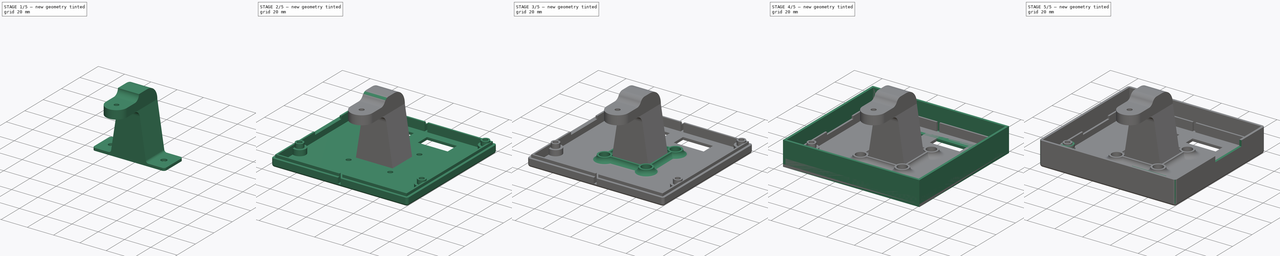
[diagram: build sequence overview — one tinted view per stage of 5, left to right]
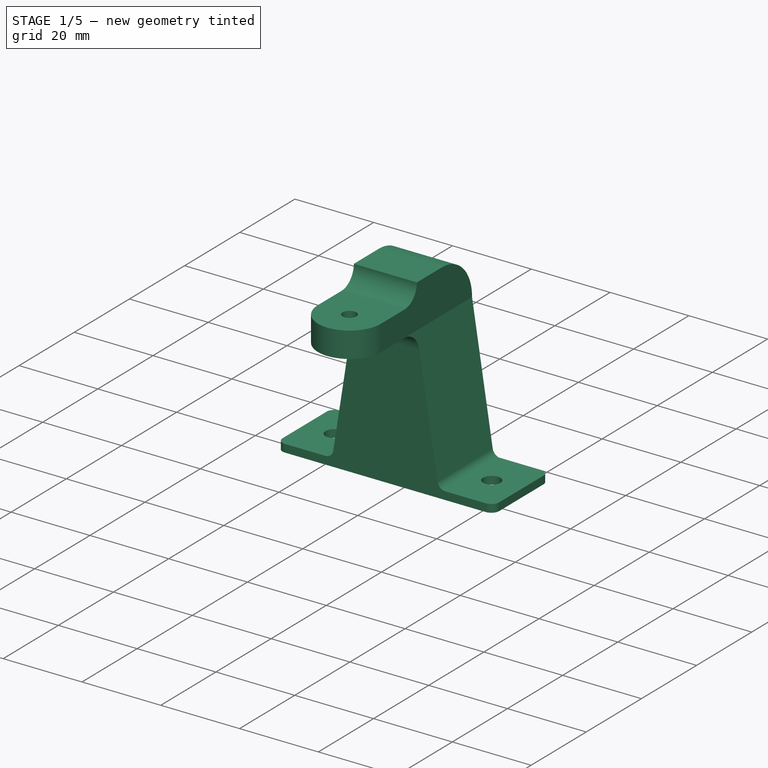
[diagram: stage 1 of 5 — iso view after this stage's code; geometry added in this stage tinted green]
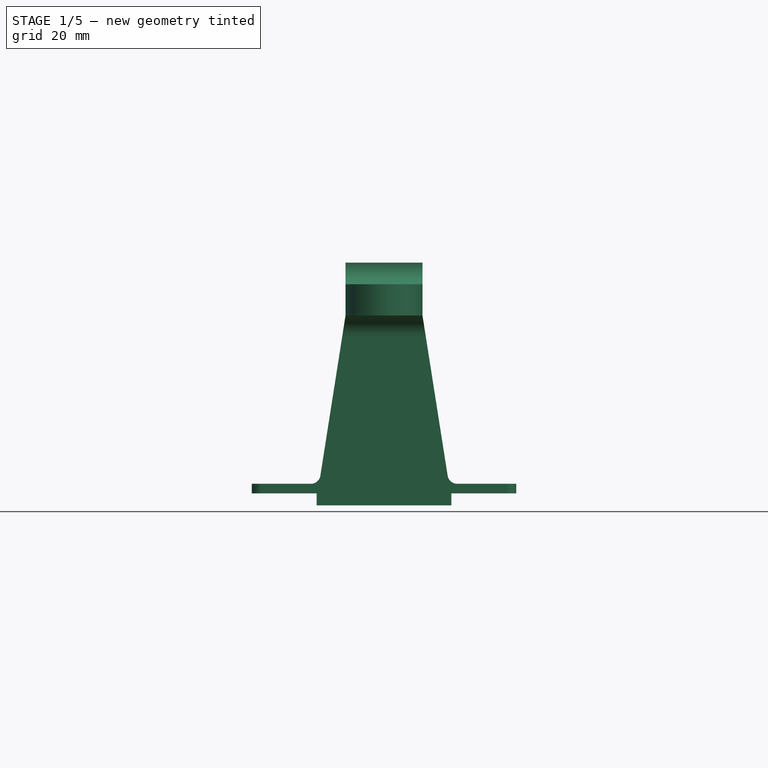
[diagram: stage 1 of 5 — front view after this stage's code; geometry added in this stage tinted green]
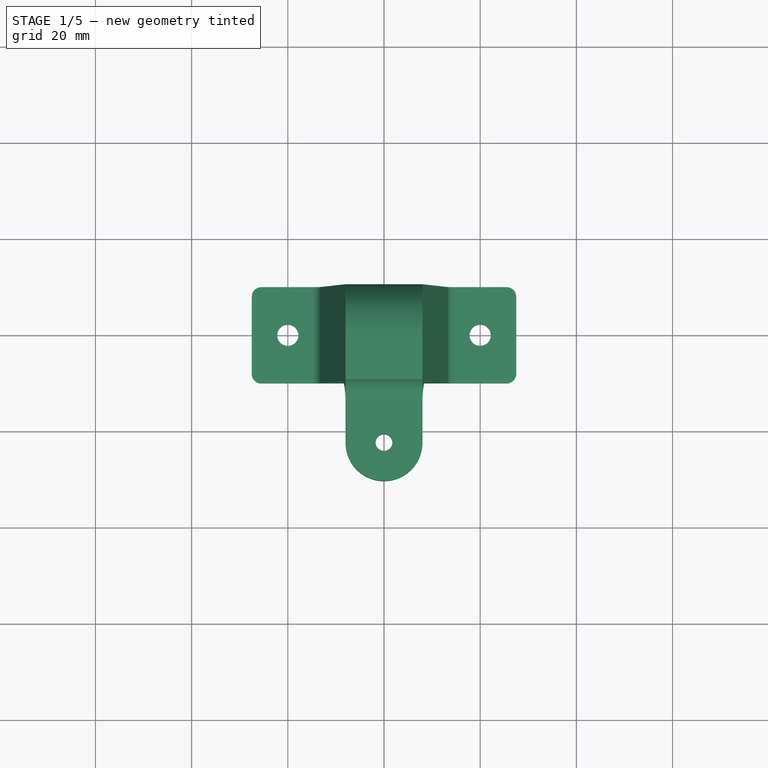
[diagram: stage 1 of 5 — top view after this stage's code; geometry added in this stage tinted green]
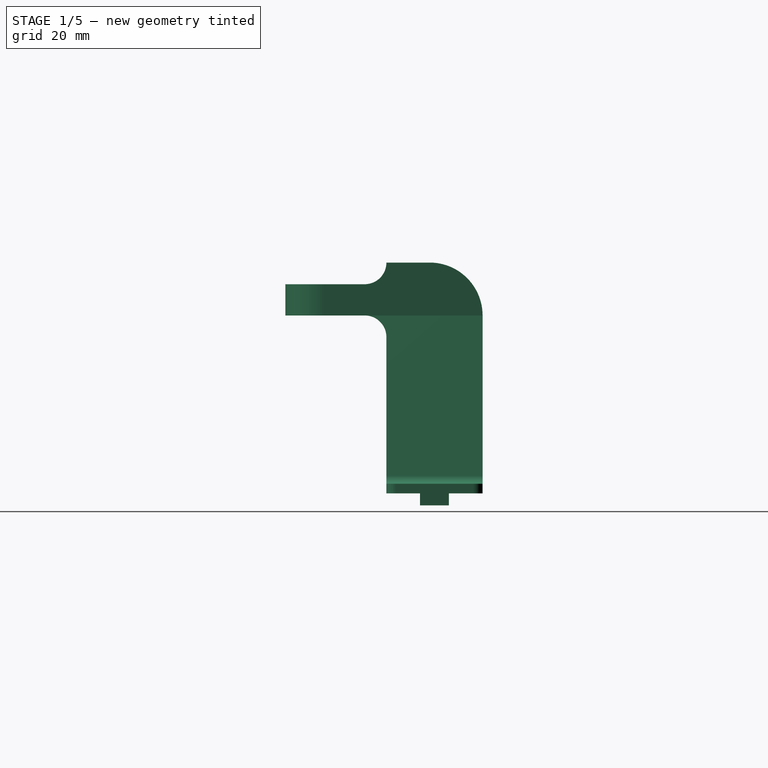
[diagram: stage 1 of 5 — right view after this stage's code; geometry added in this stage tinted green]
FCSTD DOCUMENT  (FreeCAD 0.17R13522 (Git))
Label: RRDFGSC_case
License: All rights reserved
LicenseURL: http://en.wikipedia.org/wiki/All_rights_reserved
objects: Sketcher::SketchObject×34, PartDesign::Pad×24, PartDesign::Fillet×10, PartDesign::Body×7, App::Part×7, PartDesign::Pocket×5, Spreadsheet::Sheet×2, PartDesign::AdditiveLoft×2
note: 113 computed .brp shape members not serialized (recipe doc carries the construction recipe); baked Part::Feature solids carry a one-line shape summary decoded from their .brp

FEATURE [PartDesign::Body] Body001  label="BackBody"
  Group = -> [Sketch007,Sketch005,Sketch009,Sketch006,Pad003,Pad004,Pad025,Fillet002,Pad006,Pad007,Pocket005,Pad024,Sketch042,Sketch043,Sketch044,Fillet009]
  Origin = -> Origin001
  Tip = -> Fillet009
FEATURE [App::Part] Part001  label="Back"
  Group = -> [Body001]
  License = CC BY 3.0
  LicenseURL = http://creativecommons.org/licenses/by/3.0/
  Origin = -> Origin005
  Placement = pos=(0,0,23.3) rot=(0,1,0;3.14159rad)
FEATURE [Sketcher::SketchObject] Sketch037  label="sidearm_start_l"
  MapMode = 5
  expr: Constraints[5] = sidearm_base.Constraints.ScrewDistance - 13mm
  expr: Constraints.Width = sidearm_base.Constraints.Width
  sketch-geometry (4):
    g0: LineSegment StartX=-13.5 StartY=10 StartZ=0 EndX=13.5 EndY=10 EndZ=0
    g1: LineSegment StartX=13.5 StartY=10 StartZ=0 EndX=13.5 EndY=-10 EndZ=0
    g2: LineSegment StartX=13.5 StartY=-10 StartZ=0 EndX=-13.5 EndY=-10 EndZ=0
    g3: LineSegment StartX=-13.5 StartY=-10 StartZ=0 EndX=-13.5 EndY=10 EndZ=0
  constraints (13):
    c: Horizontal(g0)
    c: Horizontal(g2)
    c: Vertical(g1)
    c: Symmetric(g0,g2,g-1)
    c: Symmetric(g3,g1,g-2)
    c: DistanceX(g3,g1) = 27
    c: Coincident(g0,g1)
    c: Coincident(g0,g3)
    c: Coincident(g2,g3)
    c: Coincident(g1,g2)
    c: Equal(g0,g2)
    c: Equal(g3,g1)
    c: DistanceY(g3,g3) = 20  'Width'
FEATURE [Sketcher::SketchObject] Sketch035  label="sidearm_base"
  MapMode = 5
  Placement = pos=(0,0,0) rot=(1,0,0;3.14159rad)
  sketch-geometry (10):
    g0: LineSegment StartX=-25.5 StartY=10 StartZ=0 EndX=25.5 EndY=10 EndZ=0
    g1: LineSegment StartX=27.5 StartY=8 StartZ=0 EndX=27.5 EndY=-8 EndZ=0
    g2: LineSegment StartX=25.5 StartY=-10 StartZ=0 EndX=-25.5 EndY=-10 EndZ=0
    g3: LineSegment StartX=-27.5 StartY=-8 StartZ=0 EndX=-27.5 EndY=8 EndZ=0
    g4: ArcOfCircle CenterX=25.5 CenterY=-8 CenterZ=0 NormalX=0 NormalY=0 NormalZ=1 AngleXU=0 Radius=2 StartAngle=4.71239 EndAngle=6.28319
    g5: ArcOfCircle CenterX=-25.5 CenterY=-8 CenterZ=0 NormalX=0 NormalY=0 NormalZ=1 AngleXU=0 Radius=2 StartAngle=3.14159 EndAngle=4.71239
    g6: ArcOfCircle CenterX=-25.5 CenterY=8 CenterZ=0 NormalX=0 NormalY=0 NormalZ=1 AngleXU=0 Radius=2 StartAngle=1.5708 EndAngle=3.14159
    g7: ArcOfCircle CenterX=25.5 CenterY=8 CenterZ=0 NormalX=0 NormalY=0 NormalZ=1 AngleXU=0 Radius=2 StartAngle=0 EndAngle=1.5708
    g8: Circle CenterX=-20 CenterY=0 CenterZ=0 NormalX=0 NormalY=0 NormalZ=1 AngleXU=0 Radius=2.2
    g9: Circle CenterX=20 CenterY=0 CenterZ=0 NormalX=0 NormalY=0 NormalZ=1 AngleXU=0 Radius=2.2
  constraints (25):
    c: Horizontal(g2)
    c: Vertical(g1)
    c: Vertical(g3)
    c: Tangent(g1,g4) = 1.5708
    c: Tangent(g2,g4) = 1.5708
    c: Tangent(g2,g5) = 1.5708
    c: Tangent(g3,g5) = 1.5708
    c: Tangent(g0,g6) = 1.5708
    c: Tangent(g3,g6) = 1.5708
    c: Tangent(g0,g7) = 1.5708
    c: Tangent(g1,g7) = 1.5708
    c: Radius(g6) = 2
    c: Equal(g7,g6)
    c: Equal(g6,g5)
    c: Equal(g5,g4)
    c: Symmetric(g2,g0,g-1)
    c: Symmetric(g0,g0,g-2)
    c: DistanceX(g3,g1) = 55
    c: DistanceY(g2,g0) = 20  'Width'
    c: PointOnObject(g8,g-1)
    c: PointOnObject(g9,g-1)
    c: Equal(g8,g9)
    c: Symmetric(g8,g9,g-2)
    c: DistanceX(g8,g9) = 40  'ScrewDistance'
    c: Radius(g8) = 2.2
FEATURE [Sketcher::SketchObject] Sketch036  label="sidearm_base_groove"
  MapMode = 5
  Placement = pos=(0,0,-2) rot=(1,0,0;3.14159rad)
  expr: Placement.Base.z = -SideArmBase.Length
  expr: Constraints[10] = arm_2020_base.Constraints.ScrewDistance - 12mm
  sketch-geometry (4):
    g0: LineSegment StartX=-14 StartY=3 StartZ=0 EndX=14 EndY=3 EndZ=0
    g1: LineSegment StartX=14 StartY=3 StartZ=0 EndX=14 EndY=-3 EndZ=0
    g2: LineSegment StartX=14 StartY=-3 StartZ=0 EndX=-14 EndY=-3 EndZ=0
    g3: LineSegment StartX=-14 StartY=-3 StartZ=0 EndX=-14 EndY=3 EndZ=0
  constraints (12):
    c: Coincident(g0,g1)
    c: Coincident(g1,g2)
    c: Coincident(g2,g3)
    c: Coincident(g3,g0)
    c: Horizontal(g0)
    c: Horizontal(g2)
    c: Vertical(g1)
    c: Vertical(g3)
    c: Symmetric(g0,g2,g-1)
    c: Symmetric(g0,g0,g-2)
    c: DistanceX(g0,g0) = 28
    c: DistanceY(g3,g3) = 6
FEATURE [Sketcher::SketchObject] Sketch041  label="sidearm_hingebase"
  MapMode = 5
  Placement = pos=(0,0,35) rot=(0,0,1;0rad)
  expr: Constraints[11] = sidearm_base.Constraints.Width
  expr: Constraints.Width = sidearm_start_h.Constraints.Width
  expr: Placement.Base.z = Dimensions.SideArmLength
  sketch-geometry (4):
    g0: LineSegment StartX=-8 StartY=10 StartZ=0 EndX=8 EndY=10 EndZ=0
    g1: LineSegment StartX=8 StartY=10 StartZ=0 EndX=8 EndY=-10 EndZ=0
    g2: LineSegment StartX=8 StartY=-10 StartZ=0 EndX=-8 EndY=-10 EndZ=0
    g3: LineSegment StartX=-8 StartY=-10 StartZ=0 EndX=-8 EndY=10 EndZ=0
  constraints (12):
    c: Coincident(g0,g1)
    c: Coincident(g1,g2)
    c: Coincident(g2,g3)
    c: Coincident(g3,g0)
    c: Horizontal(g0)
    c: Horizontal(g2)
    c: Vertical(g1)
    c: Vertical(g3)
    c: Symmetric(g0,g2,g-1)
    c: Symmetric(g0,g0,g-2)
    c: DistanceX(g0,g0) = 16  'Width'
    c: DistanceY(g3,g3) = 20
FEATURE [Sketcher::SketchObject] Sketch038  label="sidearm_start_h"
  MapMode = 5
  Placement = pos=(0,0,35) rot=(0,0,1;0rad)
  expr: Constraints[11] = sidearm_base.Constraints.Width
  expr: Constraints.Width = armadapter_hingebase.Constraints.Radius * 2
  expr: Placement.Base.z = Dimensions.SideArmLength
  sketch-geometry (4):
    g0: LineSegment StartX=-8 StartY=10 StartZ=0 EndX=8 EndY=10 EndZ=0
    g1: LineSegment StartX=8 StartY=10 StartZ=0 EndX=8 EndY=-10 EndZ=0
    g2: LineSegment StartX=8 StartY=-10 StartZ=0 EndX=-8 EndY=-10 EndZ=0
    g3: LineSegment StartX=-8 StartY=-10 StartZ=0 EndX=-8 EndY=10 EndZ=0
  constraints (12):
    c: Coincident(g0,g1)
    c: Coincident(g1,g2)
    c: Coincident(g2,g3)
    c: Coincident(g3,g0)
    c: Horizontal(g0)
    c: Horizontal(g2)
    c: Vertical(g1)
    c: Vertical(g3)
    c: Symmetric(g0,g2,g-1)
    c: Symmetric(g0,g0,g-2)
    c: DistanceX(g0,g0) = 16  'Width'
    c: DistanceY(g3,g3) = 20
FEATURE [Sketcher::SketchObject] Sketch039  label="sidearm_hinge"
  MapMode = 5
  Placement = pos=(0,-10,35) rot=(0,0,1;3.14159rad)
  expr: Constraints.VerticalOffset = armadapter_hingebase.Constraints.VerticalOffset
  expr: Placement.Base.y = -sidearm_base.Constraints.Width / 2
  expr: Constraints.Radius = armadapter_hingebase.Constraints.Radius
  expr: Placement.Base.z = Dimensions.SideArmLength
  sketch-geometry (6):
    g0: LineSegment StartX=8 StartY=0 StartZ=0 EndX=-8 EndY=0 EndZ=0
    g1: LineSegment StartX=-8 StartY=0 StartZ=0 EndX=-8 EndY=13 EndZ=0
    g2: LineSegment StartX=8 StartY=13 StartZ=0 EndX=8 EndY=0 EndZ=0
    g3: ArcOfCircle CenterX=0 CenterY=13 CenterZ=0 NormalX=0 NormalY=0 NormalZ=1 AngleXU=0 Radius=8 StartAngle=0 EndAngle=3.14159
    g4: LineSegment [constr] StartX=-8 StartY=13 StartZ=0 EndX=8 EndY=13 EndZ=0
    g5: Circle CenterX=0 CenterY=13 CenterZ=0 NormalX=0 NormalY=0 NormalZ=1 AngleXU=0 Radius=1.75
  constraints (17):
    c: Coincident(g0,g1)
    c: Coincident(g2,g0)
    c: Vertical(g1)
    c: Vertical(g2)
    c: PointOnObject(g0,g-1)
    c: Symmetric(g0,g0,g-2)
    c: DistanceY(g1,g1) = 13  'VerticalOffset'
    c: PointOnObject(g3,g-2)
    c: Coincident(g3,g1)
    c: Coincident(g3,g2)
    c: Equal(g2,g1)
    c: Coincident(g4,g1)
    c: Coincident(g4,g2)
    c: PointOnObject(g3,g4)
    c: Coincident(g5,g3)
    c: Radius(g5) = 1.75
    c: Radius(g3) = 8  'Radius'
FEATURE [PartDesign::Pad] Pad026  label="SideArmBase"
  Length = 2
  Length2 = 100
  Placement = pos=(0,0,0) rot=(1,0,0;3.14159rad)
  Profile = -> Sketch035
  Type = 0
FEATURE [PartDesign::Pad] Pad027  label="SideArmBaseGroove"
  BaseFeature = -> Pad026
  Length = 2.5
  Length2 = 100
  Placement = pos=(0,0,0) rot=(1,0,0;3.14159rad)
  Profile = -> Sketch036
  Type = 0
FEATURE [PartDesign::AdditiveLoft] AdditiveLoft001
  BaseFeature = -> Pad027
  Closed = false
  Placement = pos=(0,0,0) rot=(1,0,0;3.14159rad)
  Profile = -> Sketch037
  Ruled = false
  Sections = -> [Sketch038]
FEATURE [PartDesign::Fillet] Fillet010
  Base = -> AdditiveLoft001 [Edge12,Edge51]
  BaseFeature = -> AdditiveLoft001
  Placement = pos=(0,0,0) rot=(1,0,0;3.14159rad)
  Radius = 2
FEATURE [PartDesign::Pad] Pad028  label="SideArmHingeBase"
  BaseFeature = -> Fillet010
  Length = 11.001
  Length2 = 100
  Placement = pos=(0,0,0) rot=(1,0,0;3.14159rad)
  Profile = -> Sketch041
  Type = 0
  expr: Length = armadapter_hingecavity.Constraints.Width - 0.5mm + sidearm_hinge.Constraints.VerticalOffset - sidearm_hinge.Constraints.Radius - 0.5mm + 0.001mm
FEATURE [PartDesign::Pad] Pad029  label="SideArmHinge"
  BaseFeature = -> Pad028
  Length = 6.5
  Length2 = 100
  Placement = pos=(0,0,0) rot=(1,0,0;3.14159rad)
  Profile = -> Sketch039
  Refine = true
  Type = 0
  expr: Length = armadapter_hingecavity.Constraints.Width - 0.5mm
FEATURE [PartDesign::Fillet] Fillet011
  Base = -> Pad029 [Edge56]
  BaseFeature = -> Pad029
  Placement = pos=(0,0,0) rot=(1,0,0;3.14159rad)
  Radius = 11
  expr: Radius = SideArmHingeBase.Length - 0.001mm
FEATURE [PartDesign::Fillet] Fillet012
  Base = -> Fillet011 [Edge26,Edge32]
  BaseFeature = -> Fillet011
  Placement = pos=(0,0,0) rot=(1,0,0;3.14159rad)
  Radius = 4.5
  expr: Radius = sidearm_hinge.Constraints.VerticalOffset - sidearm_hinge.Constraints.Radius - 0.5mm
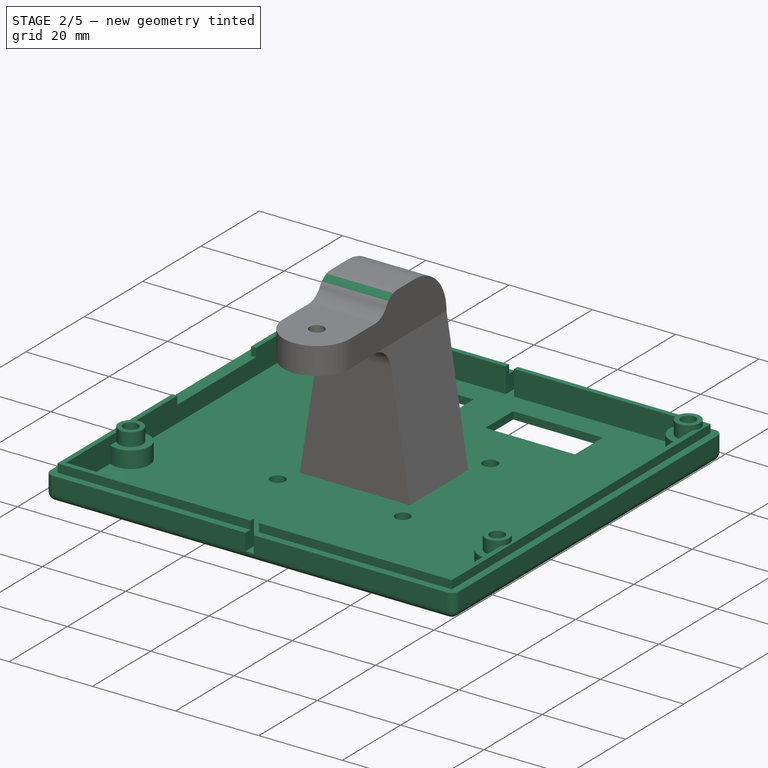
[diagram: stage 2 of 5 — iso view after this stage's code; geometry added in this stage tinted green]
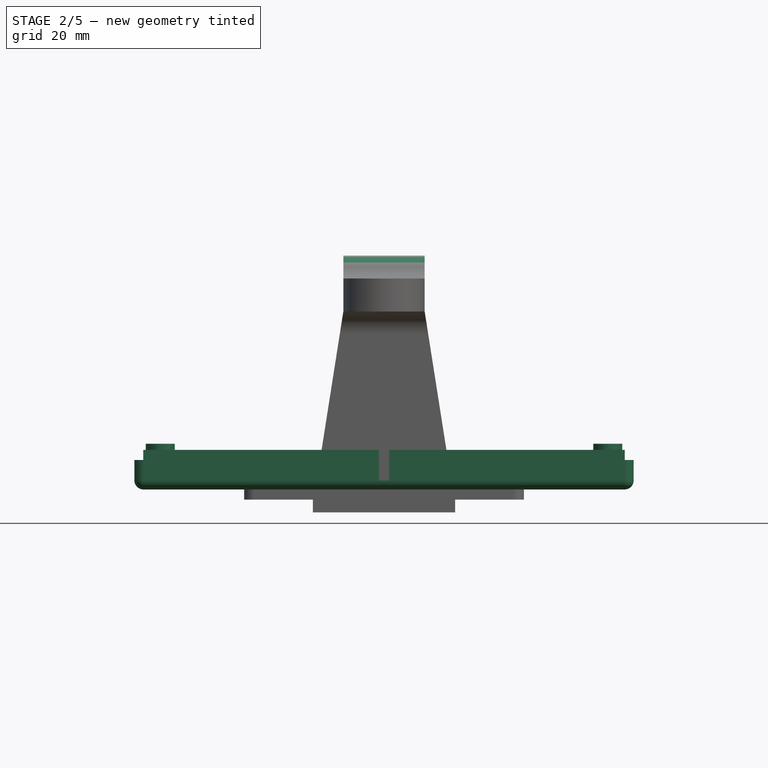
[diagram: stage 2 of 5 — front view after this stage's code; geometry added in this stage tinted green]
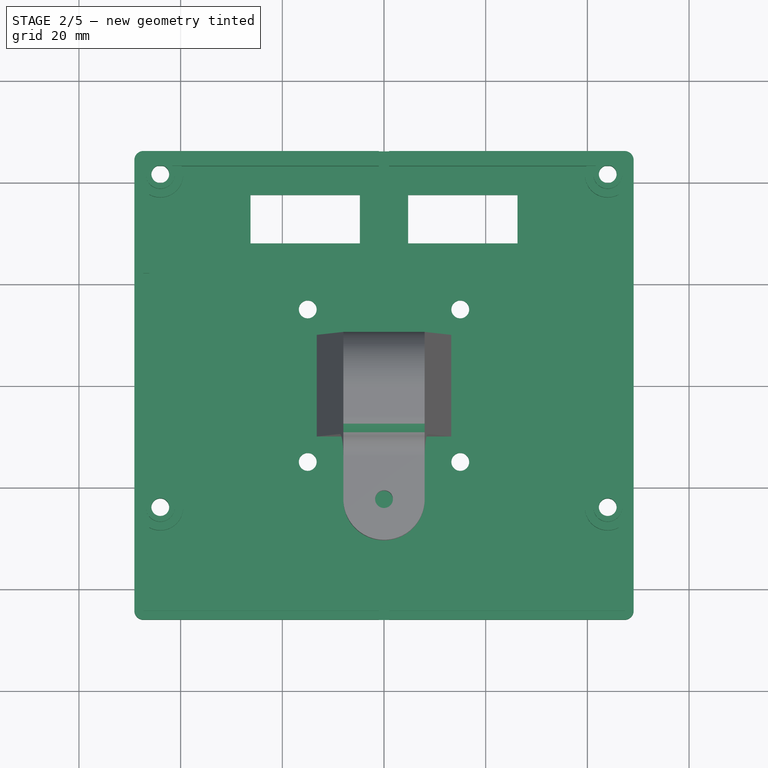
[diagram: stage 2 of 5 — top view after this stage's code; geometry added in this stage tinted green]
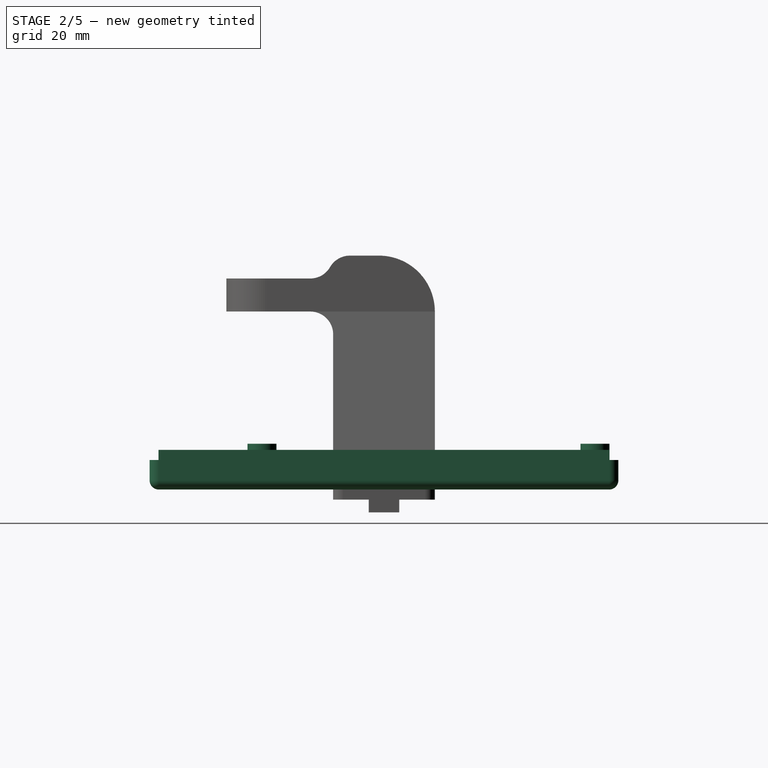
[diagram: stage 2 of 5 — right view after this stage's code; geometry added in this stage tinted green]
FEATURE [PartDesign::Pad] Pad003  label="BackPanel"
  Length = 1.8
  Length2 = 100
  Profile = -> Sketch007
  Type = 0
  expr: Length = Dimensions.PanelThickness
FEATURE [PartDesign::Pad] Pad004  label="BackWalls"
  BaseFeature = -> Pad003
  Length = 4
  Length2 = 100
  Profile = -> Sketch005
  Type = 0
FEATURE [PartDesign::Body] Body002  label="AdapterBody"
  Group = -> [Sketch011,Sketch012,Sketch010,Pad008,Pad009,Pocket002,Fillet001,Fillet008]
  Origin = -> Origin003
  Tip = -> Fillet008
FEATURE [App::Part] Part004  label="Adapter"
  Group = -> [Body002]
  License = CC BY 3.0
  LicenseURL = http://creativecommons.org/licenses/by/3.0/
  Origin = -> Origin009
FEATURE [Sketcher::SketchObject] Sketch042  label="back_enforcement"
  AttachmentOffset = pos=(0,0,1.8) rot=(0,0,1;0rad)
  MapMode = 5
  Placement = pos=(0,0,1.8) rot=(0,0,1;0rad)
  Support = -> [XY_Plane001]
  expr: Constraints[12] = Sketch007.Constraints.AttacherHoleDistance
  expr: AttachmentOffset.Base.z = BackPanel.Length
  expr: Constraints.Inner = Screws.M3NutRadius
  expr: Constraints[43] = Constraints.Inner + 1.23mm
  sketch-geometry (29):
    g0: Circle CenterX=-15 CenterY=-15 CenterZ=0 NormalX=0 NormalY=0 NormalZ=1 AngleXU=0 Radius=3.4
    g1: Circle CenterX=15 CenterY=-15 CenterZ=0 NormalX=0 NormalY=0 NormalZ=1 AngleXU=0 Radius=3.4
    g2: Circle CenterX=15 CenterY=15 CenterZ=0 NormalX=0 NormalY=0 NormalZ=1 AngleXU=0 Radius=3.4
    g3: Circle CenterX=-15 CenterY=15 CenterZ=0 NormalX=0 NormalY=0 NormalZ=1 AngleXU=0 Radius=3.4
    g4: LineSegment [constr] StartX=-15 StartY=15 StartZ=0 EndX=15 EndY=15 EndZ=0
    g5: LineSegment [constr] StartX=15 StartY=15 StartZ=0 EndX=15 EndY=-15 EndZ=0
    g6: LineSegment [constr] StartX=15 StartY=-15 StartZ=0 EndX=-15 EndY=-15 EndZ=0
    g7: LineSegment [constr] StartX=-15 StartY=-15 StartZ=0 EndX=-15 EndY=15 EndZ=0
    g8: LineSegment StartX=-15.615 StartY=10.411 StartZ=0 EndX=-15.615 EndY=-10.411 EndZ=0
    g9: LineSegment StartX=-14.385 StartY=10.411 StartZ=0 EndX=-14.385 EndY=-10.411 EndZ=0
    g10: LineSegment [constr] StartX=-15.615 StartY=10.411 StartZ=0 EndX=-14.385 EndY=10.411 EndZ=0
    g11: LineSegment StartX=-10.411 StartY=15.615 StartZ=0 EndX=10.411 EndY=15.615 EndZ=0
    g12: LineSegment StartX=10.411 StartY=14.385 StartZ=0 EndX=-10.411 EndY=14.385 EndZ=0
    g13: ArcOfCircle CenterX=-15 CenterY=15 CenterZ=0 NormalX=0 NormalY=0 NormalZ=1 AngleXU=0 Radius=4.63 StartAngle=0.133223 EndAngle=4.57917
    g14: ArcOfCircle CenterX=-15 CenterY=15 CenterZ=0 NormalX=0 NormalY=0 NormalZ=1 AngleXU=0 Radius=4.63 StartAngle=4.84561 EndAngle=6.14996
    g15: LineSegment [constr] StartX=14.385 StartY=10.411 StartZ=0 EndX=15.615 EndY=10.411 EndZ=0
    g16: LineSegment StartX=15.615 StartY=10.411 StartZ=0 EndX=15.615 EndY=-10.411 EndZ=0
    g17: LineSegment [constr] StartX=15.615 StartY=-10.411 StartZ=0 EndX=14.385 EndY=-10.411 EndZ=0
    g18: LineSegment StartX=14.385 StartY=-10.411 StartZ=0 EndX=14.385 EndY=10.411 EndZ=0
    g19: LineSegment StartX=-10.411 StartY=-14.385 StartZ=0 EndX=10.411 EndY=-14.385 EndZ=0
    g20: LineSegment StartX=10.411 StartY=-15.615 StartZ=0 EndX=-10.411 EndY=-15.615 EndZ=0
    g21: LineSegment [constr] StartX=-10.411 StartY=-15.615 StartZ=0 EndX=-10.411 EndY=-14.385 EndZ=0
    g22: ArcOfCircle CenterX=15 CenterY=-15 CenterZ=0 NormalX=0 NormalY=0 NormalZ=1 AngleXU=0 Radius=4.63 StartAngle=3.27482 EndAngle=7.72076
    g23: ArcOfCircle CenterX=15 CenterY=-15 CenterZ=0 NormalX=0 NormalY=0 NormalZ=1 AngleXU=0 Radius=4.63 StartAngle=1.70402 EndAngle=3.00837
    g24: ArcOfCircle CenterX=-15 CenterY=-15 CenterZ=0 NormalX=0 NormalY=0 NormalZ=1 AngleXU=0 Radius=4.63 StartAngle=1.70402 EndAngle=6.14996
    g25: ArcOfCircle CenterX=-15 CenterY=-15 CenterZ=0 NormalX=0 NormalY=0 NormalZ=1 AngleXU=0 Radius=4.63 StartAngle=0.133223 EndAngle=1.43757
    g26: ArcOfCircle CenterX=15 CenterY=15 CenterZ=0 NormalX=0 NormalY=0 NormalZ=1 AngleXU=0 Radius=4.63 StartAngle=4.84561 EndAngle=9.29155
    g27: ArcOfCircle CenterX=15 CenterY=15 CenterZ=0 NormalX=0 NormalY=0 NormalZ=1 AngleXU=0 Radius=4.63 StartAngle=3.27482 EndAngle=4.57917
    g28: LineSegment [constr] StartX=10.411 StartY=15.615 StartZ=0 EndX=10.411 EndY=14.385 EndZ=0
  constraints (76):
    c: Equal(g1,g2)
    c: Equal(g2,g3)
    c: Equal(g3,g0)
    c: Coincident(g4,g5)
    c: Coincident(g5,g6)
    c: Coincident(g6,g7)
    c: Coincident(g7,g4)
    c: Horizontal(g4)
    c: Horizontal(g6)
    c: Vertical(g5)
    c: Vertical(g7)
    c: Equal(g6,g5)
    c: DistanceX(g6,g6) = 30
    c: Radius(g1) = 3.4  'Inner'
    c: Vertical(g8)
    c: Vertical(g9)
    c: Symmetric(g8,g9,g7)
    c: Coincident(g10,g8)
    c: Coincident(g10,g9)
    c: DistanceX(g10,g10) = 1.23
    c: Horizontal(g11)
    c: Horizontal(g12)
    c: Coincident(g13,g3)
    c: Coincident(g13,g11)
    c: Coincident(g13,g8)
    c: Coincident(g14,g3)
    c: Coincident(g14,g9)
    c: Coincident(g12,g14)
    c: Coincident(g15,g16)
    c: Coincident(g16,g17)
    c: Coincident(g17,g18)
    c: Coincident(g18,g15)
    c: Horizontal(g15)
    c: Horizontal(g17)
    c: Vertical(g16)
    c: Vertical(g18)
    c: Coincident(g20,g21)
    c: Coincident(g21,g19)
    c: Horizontal(g19)
    c: Horizontal(g20)
    c: Vertical(g21)
    c: Coincident(g22,g1)
    c: Coincident(g22,g16)
    c: Radius(g22) = 4.63
    c: Coincident(g1,g5)
    c: Coincident(g23,g1)
    c: Coincident(g23,g17)
    c: Coincident(g23,g19)
    c: Coincident(g0,g6)
    c: Coincident(g24,g0)
    c: Coincident(g24,g8)
    c: Coincident(g24,g20)
    c: Coincident(g25,g0)
    c: Coincident(g25,g9)
    c: Coincident(g25,g19)
    c: Coincident(g26,g4)
    c: Coincident(g26,g15)
    c: Coincident(g26,g11)
    c: Coincident(g27,g12)
    c: Coincident(g27,g15)
    c: Coincident(g2,g4)
    c: Coincident(g2,g27)
    c: Coincident(g3,g4)
    c: Equal(g22,g23)
    c: Equal(g23,g26)
    c: Equal(g27,g13)
    c: Equal(g14,g24)
    c: Equal(g24,g25)
    c: Coincident(g20,g22)
    c: Coincident(g28,g11)
    c: Coincident(g28,g12)
    c: Vertical(g28)
    c: Equal(g10,g21)
    c: Equal(g21,g17)
    c: Equal(g17,g28)
    c: Symmetric(g0,g2,g-1)
FEATURE [Sketcher::SketchObject] Sketch043  label="backinnerwalls"
  MapMode = 5
  Placement = pos=(0,0,5.8) rot=(0,0,1;0rad)
  expr: Constraints[67] = Dimensions.InnerWallThickness
  expr: Constraints[5] = Dimensions.PCBHeight + 2 * Dimensions.PCBGap - 2 * Dimensions.InnerWallGap
  expr: Placement.Base.z = backwalls.Placement.Base.z + BackWalls.Length
  expr: Constraints[4] = Dimensions.PCBWidth + 2 * Dimensions.PCBGap - 2 * Dimensions.InnerWallGap
  sketch-geometry (27):
    g0: LineSegment StartX=47.35 StartY=44.35 StartZ=0 EndX=47.35 EndY=-44.35 EndZ=0
    g1: LineSegment StartX=-1 StartY=-44.35 StartZ=0 EndX=-47.35 EndY=-44.35 EndZ=0
    g2: LineSegment StartX=46.15 StartY=43.15 StartZ=0 EndX=46.15 EndY=-43.15 EndZ=0
    g3: LineSegment StartX=-1 StartY=-43.15 StartZ=0 EndX=-46.15 EndY=-43.15 EndZ=0
    g4: LineSegment StartX=-46.15 StartY=43.15 StartZ=0 EndX=-1 EndY=43.15 EndZ=0
    g5: LineSegment StartX=-1 StartY=43.15 StartZ=0 EndX=-1 EndY=44.35 EndZ=0
    g6: LineSegment StartX=-1 StartY=44.35 StartZ=0 EndX=-47.35 EndY=44.35 EndZ=0
    g7: LineSegment StartX=46.15 StartY=43.15 StartZ=0 EndX=1 EndY=43.15 EndZ=0
    g8: LineSegment StartX=1 StartY=43.15 StartZ=0 EndX=1 EndY=44.35 EndZ=0
    g9: LineSegment StartX=1 StartY=44.35 StartZ=0 EndX=47.35 EndY=44.35 EndZ=0
    g10: LineSegment [constr] StartX=-1 StartY=44.35 StartZ=0 EndX=1 EndY=44.35 EndZ=0
    g11: LineSegment StartX=46.15 StartY=-43.15 StartZ=0 EndX=1 EndY=-43.15 EndZ=0
    g12: LineSegment StartX=1 StartY=-43.15 StartZ=0 EndX=1 EndY=-44.35 EndZ=0
    g13: LineSegment StartX=1 StartY=-44.35 StartZ=0 EndX=47.35 EndY=-44.35 EndZ=0
    g14: LineSegment StartX=-1 StartY=-43.15 StartZ=0 EndX=-1 EndY=-44.35 EndZ=0
    g15: LineSegment [constr] StartX=-1 StartY=-43.15 StartZ=0 EndX=1 EndY=-43.15 EndZ=0
    g16: LineSegment [constr] StartX=-1 StartY=-44.35 StartZ=0 EndX=1 EndY=-44.35 EndZ=0
    g17: LineSegment [constr] StartX=-1 StartY=43.15 StartZ=0 EndX=1 EndY=43.15 EndZ=0
    g18: LineSegment [constr] StartX=46.15 StartY=43.15 StartZ=0 EndX=47.35 EndY=43.15 EndZ=0
    g19: LineSegment StartX=-47.35 StartY=44.35 StartZ=0 EndX=-47.35 EndY=22 EndZ=0
    g20: LineSegment [constr] StartX=-47.35 StartY=22 StartZ=0 EndX=-47.35 EndY=-5 EndZ=0
    g21: LineSegment StartX=-47.35 StartY=-5 StartZ=0 EndX=-47.35 EndY=-44.35 EndZ=0
    g22: LineSegment StartX=-46.15 StartY=43.15 StartZ=0 EndX=-46.15 EndY=22 EndZ=0
    g23: LineSegment [constr] StartX=-46.15 StartY=22 StartZ=0 EndX=-46.15 EndY=-5 EndZ=0
    g24: LineSegment StartX=-46.15 StartY=-5 StartZ=0 EndX=-46.15 EndY=-43.15 EndZ=0
    g25: LineSegment StartX=-47.35 StartY=22 StartZ=0 EndX=-46.15 EndY=22 EndZ=0
    g26: LineSegment StartX=-47.35 StartY=-5 StartZ=0 EndX=-46.15 EndY=-5 EndZ=0
  constraints (73):
    c: Horizontal(g1)
    c: Vertical(g0)
    c: Symmetric(g6,g0,g-2)
    c: Symmetric(g6,g1,g-1)
    c: DistanceX(g6,g0) = 94.7
    c: DistanceY(g1,g6) = 88.7
    c: Horizontal(g3)
    c: Vertical(g2)
    c: Symmetric(g4,g2,g-2)
    c: Symmetric(g4,g3,g-1)
    c: Horizontal(g4)
    c: Coincident(g4,g5)
    c: Vertical(g5)
    c: Coincident(g5,g6)
    c: Horizontal(g6)
    c: Coincident(g2,g7)
    c: Horizontal(g7)
    c: Coincident(g7,g8)
    c: Vertical(g8)
    c: Coincident(g8,g9)
    c: Coincident(g9,g0)
    c: Horizontal(g9)
    c: Coincident(g10,g5)
    c: Coincident(g10,g8)
    c: Symmetric(g5,g8,g-2)
    c: DistanceX(g10,g10) = 2
    c: Coincident(g2,g11)
    c: Horizontal(g11)
    c: Coincident(g11,g12)
    c: Vertical(g12)
    c: Coincident(g12,g13)
    c: Coincident(g13,g0)
    c: Horizontal(g13)
    c: Coincident(g14,g3)
    c: Coincident(g14,g1)
    c: Vertical(g14)
    c: Coincident(g15,g3)
    c: Coincident(g15,g11)
    c: Coincident(g16,g1)
    c: Coincident(g16,g12)
    c: Horizontal(g16)
    c: Symmetric(g3,g11,g-2)
    c: Equal(g16,g15)
    c: Equal(g15,g10)
    c: Coincident(g17,g4)
    c: Coincident(g17,g7)
    c: Coincident(g18,g2)
    c: PointOnObject(g18,g0)
    c: Horizontal(g18)
    c: Coincident(g6,g19)
    c: Vertical(g19)
    c: Coincident(g19,g20)
    c: Vertical(g20)
    c: Coincident(g20,g21)
    c: Coincident(g21,g1)
    c: Coincident(g4,g22)
    c: Vertical(g22)
    c: Coincident(g22,g23)
    c: Vertical(g23)
    c: Coincident(g23,g24)
    c: Coincident(g24,g3)
    c: Coincident(g25,g19)
    c: Coincident(g25,g22)
    c: Horizontal(g25)
    c: Coincident(g26,g20)
    c: Coincident(g26,g23)
    c: Horizontal(g26)
    c: DistanceX(g1,g3) = 1.2
    c: Equal(g26,g5)
    c: Equal(g5,g18)
    c: Equal(g18,g12)
    c: DistanceY(g-1,g19) = 22
    c: DistanceY(g20,g20) = 27
FEATURE [PartDesign::Pad] Pad025  label="BackInnerWalls"
  BaseFeature = -> Pad004
  Length = 2
  Length2 = 100
  Profile = -> Sketch043
  Refine = true
  Type = 0
FEATURE [PartDesign::Fillet] Fillet002
  Base = -> Pad025 [Edge39,Edge42,Edge109,Edge33,Edge38,Edge40,Edge41,Edge110]
  BaseFeature = -> Pad025
  Radius = 1.799
  expr: Radius = Spreadsheet.PanelThickness - 0.001mm
FEATURE [PartDesign::Pad] Pad006  label="BackNuts2"
  BaseFeature = -> Fillet002
  Length = 4
  Length2 = 100
  Profile = -> Sketch009
  Type = 0
  expr: Length = BackWalls.Length
FEATURE [PartDesign::Pad] Pad007  label="BackNuts3"
  BaseFeature = -> Pad006
  Length = 3.2
  Length2 = 100
  Profile = -> Sketch006
  Refine = true
  Type = 0
FEATURE [Sketcher::SketchObject] Sketch044  label="backnuts"
  MapMode = 5
  expr: Constraints[102] = Dimensions.HoleDistanceH
  expr: Constraints[9] = Dimensions.PCBWidth
  expr: Constraints[109] = Dimensions.HoleDistanceV
  expr: Constraints[101] = Screws.M3NutRadius
  expr: Constraints[19] = Dimensions.LCDHeight
  expr: Constraints[110] = Dimensions.PCBHeight / 2 - Dimensions.HoleDistanceTop
  expr: Constraints[10] = Dimensions.PCBHeight
  expr: Constraints[20] = Dimensions.LCDWidth
  sketch-geometry (38):
    g0: LineSegment [constr] StartX=-44 StartY=41.5 StartZ=0 EndX=44 EndY=41.5 EndZ=0
    g1: LineSegment [constr] StartX=-44 StartY=-24 StartZ=0 EndX=44 EndY=-24 EndZ=0
    g2: LineSegment [constr] StartX=-46.5 StartY=43.5 StartZ=0 EndX=46.5 EndY=43.5 EndZ=0
    g3: LineSegment [constr] StartX=46.5 StartY=43.5 StartZ=0 EndX=46.5 EndY=-43.5 EndZ=0
    g4: LineSegment [constr] StartX=46.5 StartY=-43.5 StartZ=0 EndX=-46.5 EndY=-43.5 EndZ=0
    g5: LineSegment [constr] StartX=-46.5 StartY=-43.5 StartZ=0 EndX=-46.5 EndY=43.5 EndZ=0
    g6: LineSegment [constr] StartX=-39 StartY=34.5 StartZ=0 EndX=39 EndY=34.5 EndZ=0
    g7: LineSegment [constr] StartX=39 StartY=34.5 StartZ=0 EndX=39 EndY=-16.5 EndZ=0
    g8: LineSegment [constr] StartX=39 StartY=-16.5 StartZ=0 EndX=-39 EndY=-16.5 EndZ=0
    g9: LineSegment [constr] StartX=-39 StartY=-16.5 StartZ=0 EndX=-39 EndY=34.5 EndZ=0
    g10: LineSegment StartX=-42.3 StartY=38.5555 StartZ=0 EndX=-40.6 EndY=41.5 EndZ=0
    g11: LineSegment StartX=-40.6 StartY=41.5 StartZ=0 EndX=-42.3 EndY=44.4445 EndZ=0
    g12: LineSegment StartX=-42.3 StartY=44.4445 StartZ=0 EndX=-45.7 EndY=44.4445 EndZ=0
    g13: LineSegment StartX=-45.7 StartY=44.4445 StartZ=0 EndX=-47.4 EndY=41.5 EndZ=0
    g14: LineSegment StartX=-47.4 StartY=41.5 StartZ=0 EndX=-45.7 EndY=38.5555 EndZ=0
    g15: LineSegment StartX=-45.7 StartY=38.5555 StartZ=0 EndX=-42.3 EndY=38.5555 EndZ=0
    g16: Circle [constr] CenterX=-44 CenterY=41.5 CenterZ=0 NormalX=0 NormalY=0 NormalZ=1 AngleXU=0 Radius=3.4
    g17: LineSegment StartX=45.7 StartY=38.5555 StartZ=0 EndX=47.4 EndY=41.5 EndZ=0
    g18: LineSegment StartX=47.4 StartY=41.5 StartZ=0 EndX=45.7 EndY=44.4445 EndZ=0
    g19: LineSegment StartX=45.7 StartY=44.4445 StartZ=0 EndX=42.3 EndY=44.4445 EndZ=0
    g20: LineSegment StartX=42.3 StartY=44.4445 StartZ=0 EndX=40.6 EndY=41.5 EndZ=0
    g21: LineSegment StartX=40.6 StartY=41.5 StartZ=0 EndX=42.3 EndY=38.5555 EndZ=0
    g22: LineSegment StartX=42.3 StartY=38.5555 StartZ=0 EndX=45.7 EndY=38.5555 EndZ=0
    g23: Circle [constr] CenterX=44 CenterY=41.5 CenterZ=0 NormalX=0 NormalY=0 NormalZ=1 AngleXU=0 Radius=3.4
    g24: LineSegment StartX=45.7 StartY=-26.9445 StartZ=0 EndX=47.4 EndY=-24 EndZ=0
    g25: LineSegment StartX=47.4 StartY=-24 StartZ=0 EndX=45.7 EndY=-21.0555 EndZ=0
    g26: LineSegment StartX=45.7 StartY=-21.0555 StartZ=0 EndX=42.3 EndY=-21.0555 EndZ=0
    g27: LineSegment StartX=42.3 StartY=-21.0555 StartZ=0 EndX=40.6 EndY=-24 EndZ=0
    g28: LineSegment StartX=40.6 StartY=-24 StartZ=0 EndX=42.3 EndY=-26.9445 EndZ=0
    g29: LineSegment StartX=42.3 StartY=-26.9445 StartZ=0 EndX=45.7 EndY=-26.9445 EndZ=0
    g30: Circle [constr] CenterX=44 CenterY=-24 CenterZ=0 NormalX=0 NormalY=0 NormalZ=1 AngleXU=0 Radius=3.4
    g31: LineSegment StartX=-42.3 StartY=-26.9445 StartZ=0 EndX=-40.6 EndY=-24 EndZ=0
    g32: LineSegment StartX=-40.6 StartY=-24 StartZ=0 EndX=-42.3 EndY=-21.0555 EndZ=0
    g33: LineSegment StartX=-42.3 StartY=-21.0555 StartZ=0 EndX=-45.7 EndY=-21.0555 EndZ=0
    g34: LineSegment StartX=-45.7 StartY=-21.0555 StartZ=0 EndX=-47.4 EndY=-24 EndZ=0
    g35: LineSegment StartX=-47.4 StartY=-24 StartZ=0 EndX=-45.7 EndY=-26.9445 EndZ=0
    g36: LineSegment StartX=-45.7 StartY=-26.9445 StartZ=0 EndX=-42.3 EndY=-26.9445 EndZ=0
    g37: Circle [constr] CenterX=-44 CenterY=-24 CenterZ=0 NormalX=0 NormalY=0 NormalZ=1 AngleXU=0 Radius=3.4
  constraints (95):
    c: Equal(g0,g1)
    c: Coincident(g2,g3)
    c: Coincident(g3,g4)
    c: Coincident(g4,g5)
    c: Coincident(g5,g2)
    c: Horizontal(g2)
    c: Horizontal(g4)
    c: Vertical(g3)
    c: Vertical(g5)
    c: DistanceX(g2,g2) = 93
    c: DistanceY(g5,g5) = 87
    c: Coincident(g6,g7)
    c: Coincident(g7,g8)
    c: Coincident(g8,g9)
    c: Coincident(g9,g6)
    c: Horizontal(g6)
    c: Horizontal(g8)
    c: Vertical(g7)
    c: Vertical(g9)
    c: DistanceY(g9,g9) = 51
    c: DistanceX(g6,g6) = 78
    c: DistanceY(g6,g2) = 9
    c: Symmetric(g4,g3,g-2)
    c: Symmetric(g2,g2,g-2)
    c: Symmetric(g2,g4,g-1)
    c: Symmetric(g6,g6,g-2)
    c: Coincident(g10,g11)
    c: Coincident(g11,g12)
    c: Coincident(g12,g13)
    c: Coincident(g13,g14)
    c: Coincident(g14,g15)
    c: Coincident(g15,g10)
    c: Equal(g10, g11-g15) x5
    c: PointOnObject(g10,g16)
    c: PointOnObject(g11,g16)
    c: PointOnObject(g12,g16)
    c: PointOnObject(g13,g16)
    c: PointOnObject(g14,g16)
    c: PointOnObject(g15,g16)
    c: Coincident(g17,g18)
    c: Coincident(g18,g19)
    c: Coincident(g19,g20)
    c: Coincident(g20,g21)
    c: Coincident(g21,g22)
    c: Coincident(g22,g17)
    c: Equal(g17, g18-g22) x5
    c: PointOnObject(g17,g23)
    c: PointOnObject(g18,g23)
    c: PointOnObject(g19,g23)
    c: PointOnObject(g20,g23)
    c: PointOnObject(g21,g23)
    c: PointOnObject(g22,g23)
    c: Coincident(g24,g25)
    c: Coincident(g25,g26)
    c: Coincident(g26,g27)
    c: Coincident(g27,g28)
    c: Coincident(g28,g29)
    c: Coincident(g29,g24)
    c: Equal(g24, g25-g29) x5
    c: PointOnObject(g24,g30)
    c: PointOnObject(g25,g30)
    c: PointOnObject(g26,g30)
    c: PointOnObject(g27,g30)
    c: PointOnObject(g28,g30)
    c: PointOnObject(g29,g30)
    c: Coincident(g31,g32)
    c: Coincident(g32,g33)
    c: Coincident(g33,g34)
    c: Coincident(g34,g35)
    c: Coincident(g35,g36)
    c: Coincident(g36,g31)
    c: Equal(g31, g32-g36) x5
    c: PointOnObject(g31,g37)
    c: PointOnObject(g32,g37)
    c: PointOnObject(g33,g37)
    c: PointOnObject(g34,g37)
    c: PointOnObject(g35,g37)
    c: PointOnObject(g36,g37)
    c: Horizontal(g12)
    c: Horizontal(g19)
    c: Horizontal(g26)
    c: Horizontal(g33)
    c: Equal(g37,g30)
    c: Equal(g30,g23)
    c: Equal(g23,g16)
    c: Radius(g30) = 3.4
    c: DistanceX(g0,g0) = 88
    c: Symmetric(g0,g0,g-2)
    c: Coincident(g23,g0)
    c: Coincident(g16,g0)
    c: Symmetric(g1,g1,g-2)
    c: Coincident(g37,g1)
    c: Coincident(g1,g30)
    c: DistanceY(g1,g0) = 65.5
    c: DistanceY(g-1,g0) = 41.5
FEATURE [PartDesign::Pocket] Pocket005  label="BackNuts"
  BaseFeature = -> Pad007
  Length = 2.6
  Length2 = 100
  Profile = -> Sketch044
  Reversed = true
  Type = 0
  expr: Length = Screws.M3NutHeight
FEATURE [PartDesign::Fillet] Fillet013
  Base = -> Fillet012 [Edge12]
  BaseFeature = -> Fillet012
  Placement = pos=(0,0,0) rot=(1,0,0;3.14159rad)
  Radius = 4.5
  expr: Radius = sidearm_hinge.Constraints.VerticalOffset - sidearm_hinge.Constraints.Radius - 0.5mm
FEATURE [PartDesign::Body] Body007  label="SideArmBody"
  Group = -> [Sketch035,Sketch036,Sketch037,Sketch038,Sketch041,Sketch039,Pad026,Pad027,AdditiveLoft001,Fillet010,Pad028,Pad029,Fillet011,Fillet012,Fillet013]
  Origin = -> Origin012
  Placement = pos=(0,0,0) rot=(-1,0,0;1.5708rad)
  Tip = -> Fillet013
FEATURE [App::Part] Part006  label="SideArm"
  Group = -> [Body007]
  License = CC BY 3.0
  LicenseURL = http://creativecommons.org/licenses/by/3.0/
  Origin = -> Origin011
  Placement = pos=(-53.2,0,61) rot=(0.707107,0.707107,0;3.14159rad)
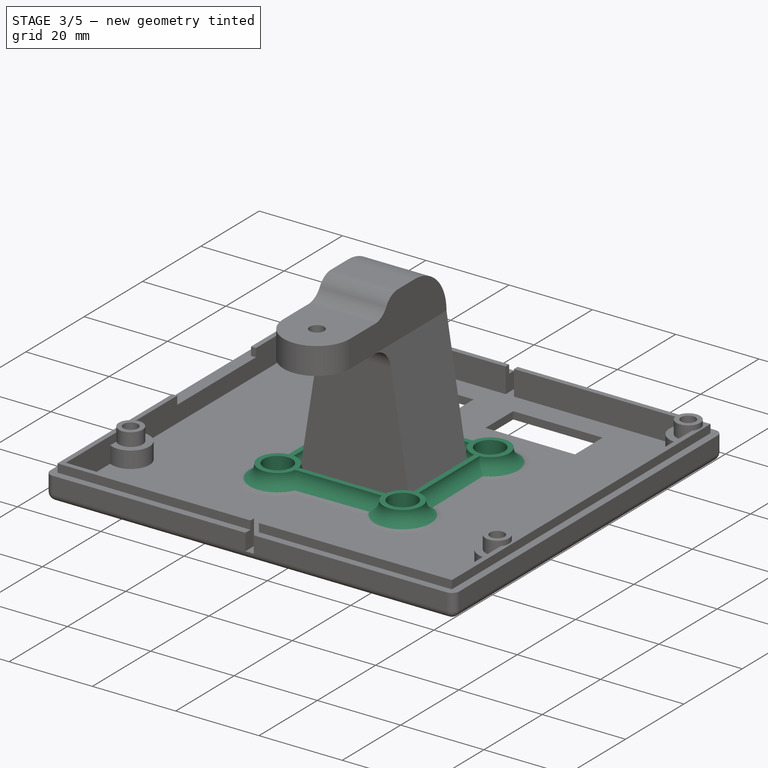
[diagram: stage 3 of 5 — iso view after this stage's code; geometry added in this stage tinted green]
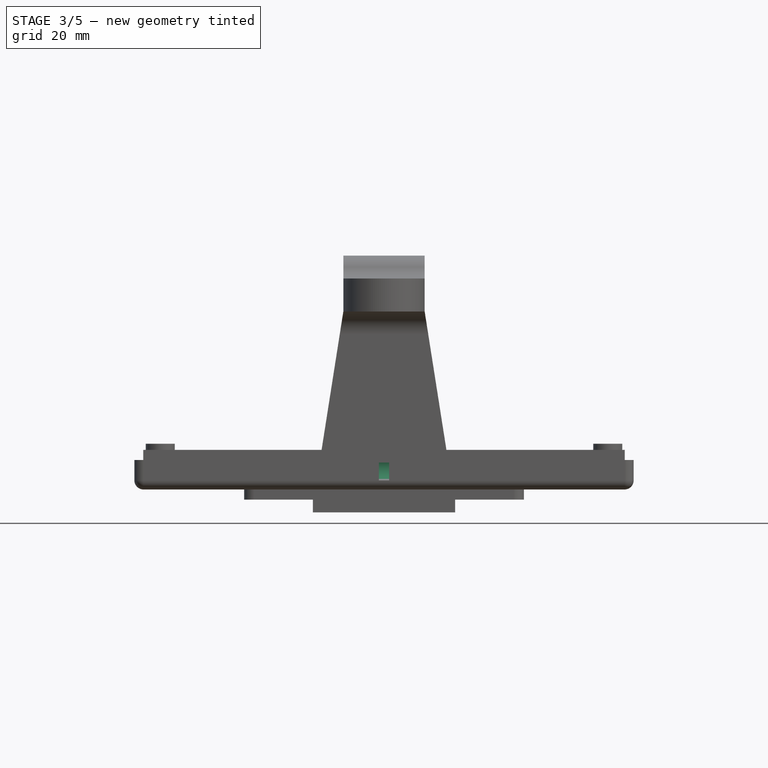
[diagram: stage 3 of 5 — front view after this stage's code; geometry added in this stage tinted green]
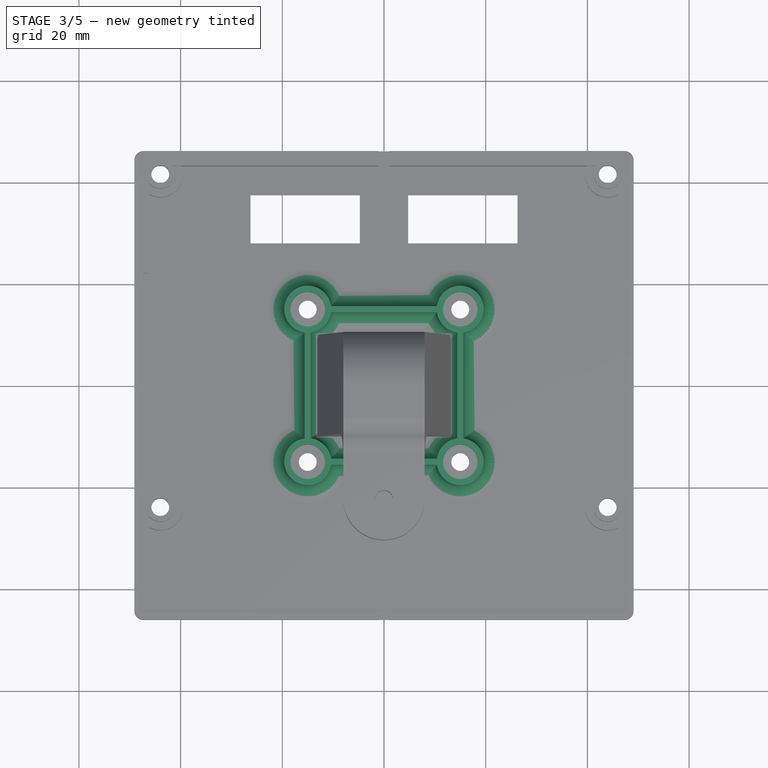
[diagram: stage 3 of 5 — top view after this stage's code; geometry added in this stage tinted green]
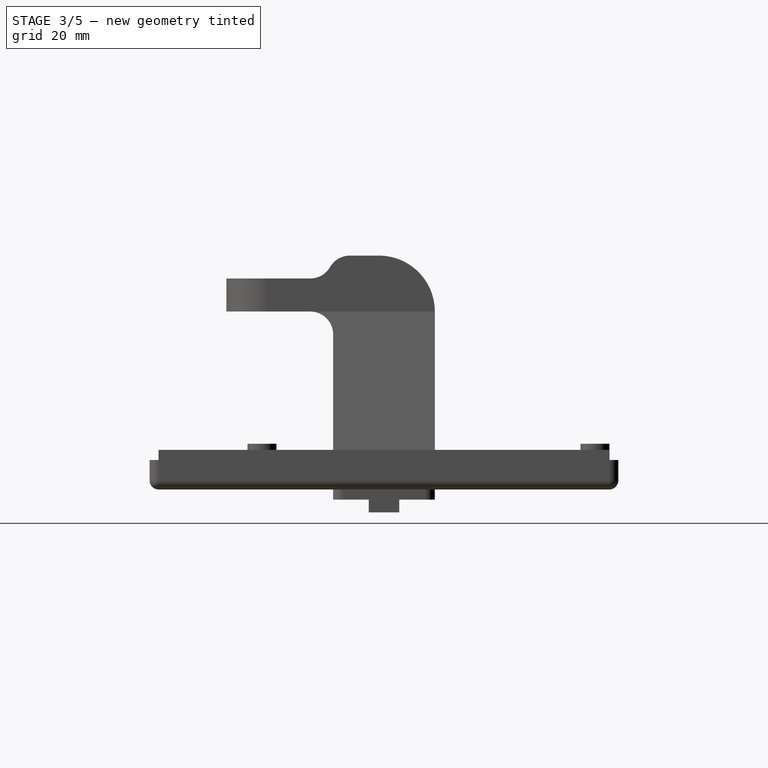
[diagram: stage 3 of 5 — right view after this stage's code; geometry added in this stage tinted green]
FEATURE [PartDesign::Pad] Pad008  label="ArmAdapterHingebase"
  Length = 16
  Length2 = 100
  Midplane = true
  Placement = pos=(0,0,0) rot=(0.57735,0.57735,0.57735;2.0944rad)
  Profile = -> Sketch011
  Type = 0
  expr: Length = armadapter_hingebase.Constraints.Radius * 2
FEATURE [PartDesign::Pad] Pad009  label="ArmAdapterBackJoin"
  BaseFeature = -> Pad008
  Length = 1.8
  Length2 = 100
  Placement = pos=(0,0,0) rot=(0.57735,0.57735,0.57735;2.0944rad)
  Profile = -> Sketch010
  Reversed = true
  Type = 0
  expr: Length = Dimensions.PanelThickness
FEATURE [PartDesign::Pocket] Pocket002  label="ArmAdapterHingeCavity"
  BaseFeature = -> Pad009
  Length = 0
  Length2 = 0
  Placement = pos=(0,0,0) rot=(0.57735,0.57735,0.57735;2.0944rad)
  Profile = -> Sketch012
  Refine = true
  Type = 2
FEATURE [PartDesign::Fillet] Fillet001
  Base = -> Pocket002 [Edge43,Edge39]
  BaseFeature = -> Pocket002
  Placement = pos=(0,0,0) rot=(0.57735,0.57735,0.57735;2.0944rad)
  Radius = 1
FEATURE [PartDesign::Body] Body005  label="SideAdapterBody"
  Group = -> [Pad015,Pad016,Pocket003,Sketch028,Sketch030,Sketch029,Fillet003]
  Origin = -> Origin003
  Tip = -> Fillet003
FEATURE [App::Part] Part005  label="SideAdapter"
  Group = -> [Body005]
  License = CC BY 3.0
  LicenseURL = http://creativecommons.org/licenses/by/3.0/
  Origin = -> Origin009
  Placement = pos=(-15,0,25) rot=(0,0,1;1.5708rad)
FEATURE [PartDesign::Pad] Pad017  label="ResetButtonBase"
  Length = 5
  Length2 = 100
  Profile = -> Sketch020
  Type = 0
FEATURE [PartDesign::Pad] Pad018
  BaseFeature = -> Pad017
  Length = 5
  Length2 = 100
  Profile = -> Sketch021
  Type = 0
FEATURE [PartDesign::Body] Body004  label="ResetButtonBody"
  Group = -> [Sketch020,Sketch021,Sketch022,Pad017,Pad018,Pocket004]
  Origin = -> Origin008
  Tip = -> Pocket004
FEATURE [App::Part] Part003  label="ResetButton"
  Group = -> [Body004]
  License = CC BY 3.0
  LicenseURL = http://creativecommons.org/licenses/by/3.0/
  Origin = -> Origin007
  Placement = pos=(-4,-34.9,7) rot=(0,1,0;3.14159rad)
FEATURE [PartDesign::Fillet] Fillet008
  Base = -> Fillet001 [Edge34,Edge21]
  BaseFeature = -> Fillet001
  Placement = pos=(0,0,0) rot=(0.57735,0.57735,0.57735;2.0944rad)
  Radius = 2
FEATURE [PartDesign::Pad] Pad024  label="BackEnforcement"
  BaseFeature = -> Pocket005
  Length = 3.5
  Length2 = 100
  Profile = -> Sketch042
  Type = 0
  expr: Length = Screws.M3HeadHeight + 0.10000000000000001mm
FEATURE [PartDesign::Fillet] Fillet009
  Base = -> Pad024 [Edge239,Edge238,Edge237,Edge236,Edge235,Edge234,Edge241,Edge240,Face138]
  BaseFeature = -> Pad024
  Radius = 3.499
  expr: Radius = BackEnforcement.Length - 0.001mm
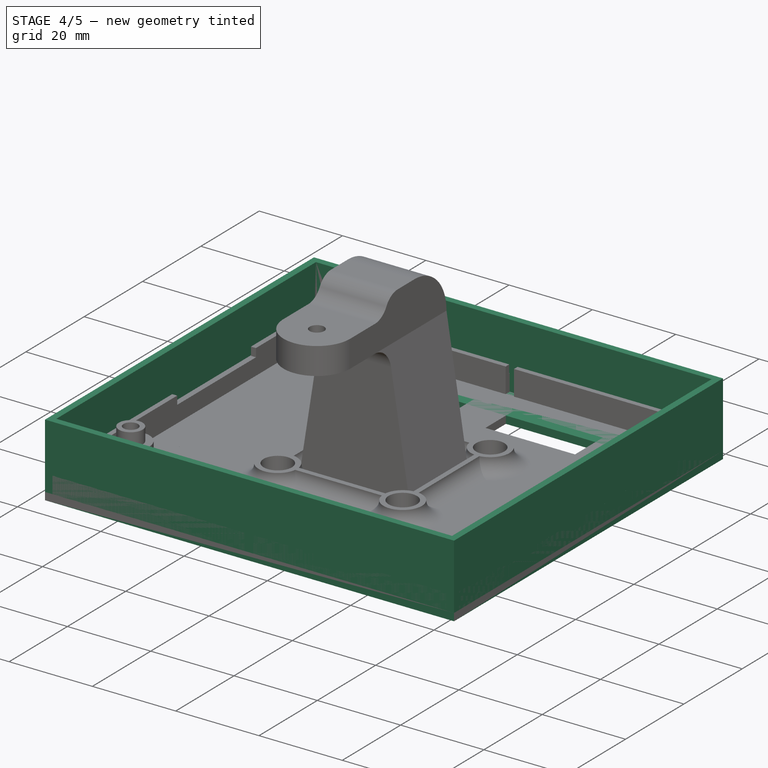
[diagram: stage 4 of 5 — iso view after this stage's code; geometry added in this stage tinted green]
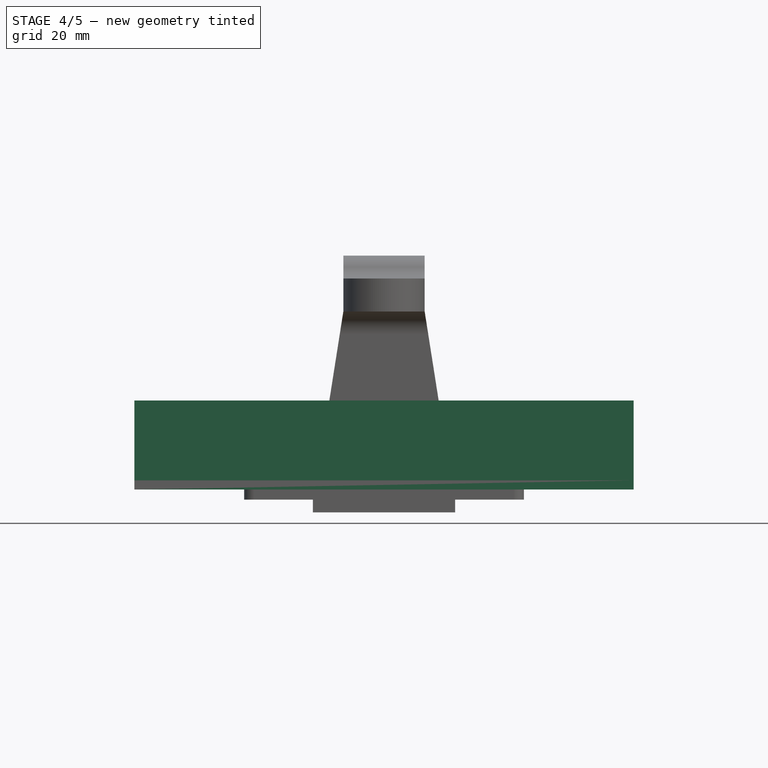
[diagram: stage 4 of 5 — front view after this stage's code; geometry added in this stage tinted green]
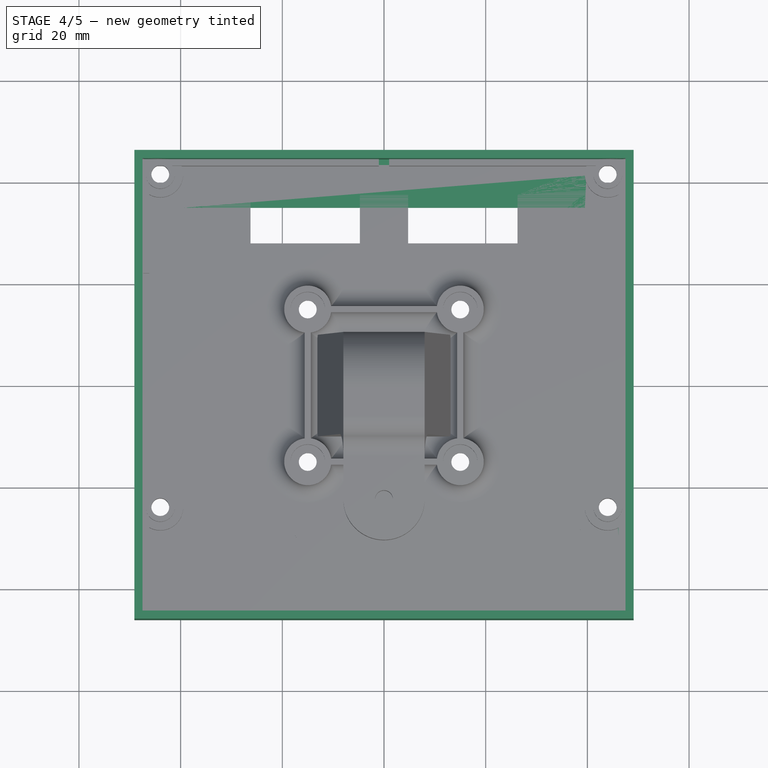
[diagram: stage 4 of 5 — top view after this stage's code; geometry added in this stage tinted green]
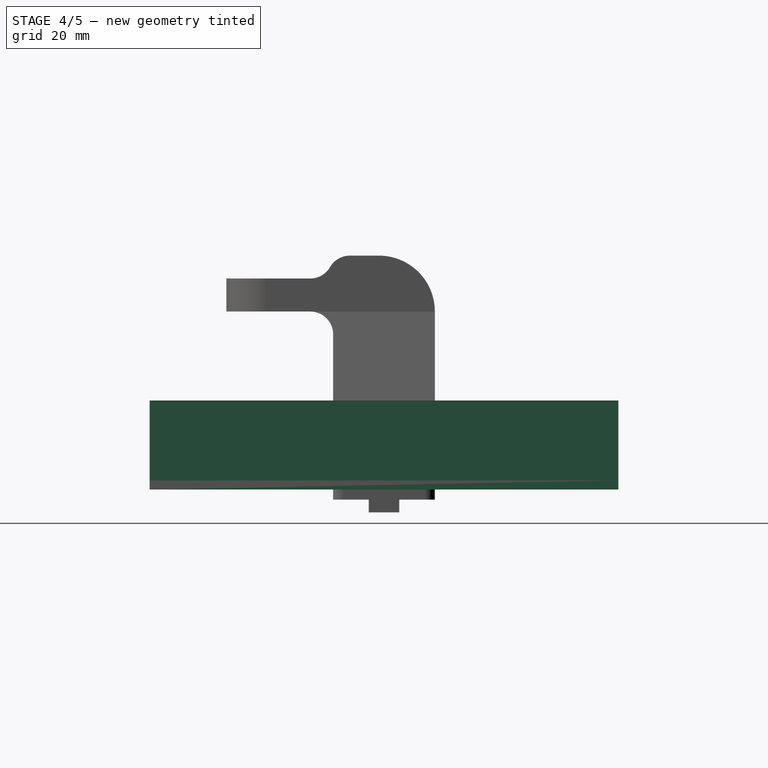
[diagram: stage 4 of 5 — right view after this stage's code; geometry added in this stage tinted green]
FEATURE [Sketcher::SketchObject] Sketch  label="frontpanel"
  MapMode = 5
  expr: Constraints[124] = Dimensions.VMHeight
  expr: Constraints.Width = Dimensions.PCBWidth + Dimensions.PCBGap * 2 + Dimensions.WallThickness * 2
  expr: Constraints[95] = Dimensions.LCDGap
  expr: Constraints[123] = Dimensions.VMWidth
  expr: Constraints[11] = Dimensions.PCBHeight + Dimensions.PCBGap * 2 + Dimensions.WallThickness * 2
  expr: Constraints[21] = Dimensions.LCDWidth + Dimensions.LCDGap * 2
  expr: Constraints[93] = Dimensions.LCDHeight
  expr: Constraints[114] = Screws.M3HeadRadius
  expr: Constraints[33] = Dimensions.PCBWidth
  expr: Constraints[112] = Dimensions.PCBHeight / 2 - Dimensions.HoleDistanceTop
  expr: Constraints[113] = Dimensions.HoleDistanceV
  expr: Constraints[94] = Dimensions.LCDGap
  expr: Constraints[108] = Dimensions.HoleDistanceH
  expr: Constraints[22] = Dimensions.LCDHeight + Dimensions.LCDGap * 2
  expr: Constraints[96] = Dimensions.LCDWidth
  expr: Constraints[34] = Dimensions.PCBHeight
  sketch-geometry (48):
    g0: LineSegment StartX=-49.1 StartY=46.1 StartZ=0 EndX=49.1 EndY=46.1 EndZ=0
    g1: LineSegment StartX=49.1 StartY=46.1 StartZ=0 EndX=49.1 EndY=-46.1 EndZ=0
    g2: LineSegment StartX=49.1 StartY=-46.1 StartZ=0 EndX=-49.1 EndY=-46.1 EndZ=0
    g3: LineSegment StartX=-49.1 StartY=-46.1 StartZ=0 EndX=-49.1 EndY=46.1 EndZ=0
    g4: LineSegment StartX=-39.5 StartY=35 StartZ=0 EndX=39.5 EndY=35 EndZ=0
    g5: LineSegment StartX=39.5 StartY=35 StartZ=0 EndX=39.5 EndY=-17 EndZ=0
    g6: LineSegment StartX=39.5 StartY=-17 StartZ=0 EndX=-39.5 EndY=-17 EndZ=0
    g7: LineSegment StartX=-39.5 StartY=-17 StartZ=0 EndX=-39.5 EndY=35 EndZ=0
    g8: Circle CenterX=-37 CenterY=-35 CenterZ=0 NormalX=0 NormalY=0 NormalZ=1 AngleXU=0 Radius=5
    g9: LineSegment [constr] StartX=-46.5 StartY=43.5 StartZ=0 EndX=46.5 EndY=43.5 EndZ=0
    g10: LineSegment [constr] StartX=46.5 StartY=43.5 StartZ=0 EndX=46.5 EndY=-43.5 EndZ=0
    g11: LineSegment [constr] StartX=46.5 StartY=-43.5 StartZ=0 EndX=-46.5 EndY=-43.5 EndZ=0
    g12: LineSegment [constr] StartX=-46.5 StartY=-43.5 StartZ=0 EndX=-46.5 EndY=43.5 EndZ=0
    g13: Circle [constr] CenterX=-18.5 CenterY=-35 CenterZ=0 NormalX=0 NormalY=0 NormalZ=1 AngleXU=0 Radius=6
    g14: LineSegment [constr] StartX=-49.1 StartY=-35 StartZ=0 EndX=49.1 EndY=-35 EndZ=0
    g15: Circle CenterX=-4 CenterY=-35 CenterZ=0 NormalX=0 NormalY=0 NormalZ=1 AngleXU=0 Radius=3.2
    g16: Circle CenterX=-23.1 CenterY=-35 CenterZ=0 NormalX=0 NormalY=0 NormalZ=1 AngleXU=0 Radius=1.4
    g17: LineSegment [constr] StartX=-18.5 StartY=-29 StartZ=0 EndX=-18.5 EndY=-41 EndZ=0
    g18: Circle CenterX=-18.5 CenterY=-30.4 CenterZ=0 NormalX=0 NormalY=0 NormalZ=1 AngleXU=0 Radius=1.4
    g19: Circle CenterX=-13.9 CenterY=-35 CenterZ=0 NormalX=0 NormalY=0 NormalZ=1 AngleXU=0 Radius=1.4
    g20: Circle CenterX=-18.5 CenterY=-39.6 CenterZ=0 NormalX=0 NormalY=0 NormalZ=1 AngleXU=0 Radius=1.4
    g21: Circle CenterX=-18.5 CenterY=-35 CenterZ=0 NormalX=0 NormalY=0 NormalZ=1 AngleXU=0 Radius=2.2
    g22: LineSegment [constr] StartX=-22.7426 StartY=-30.7574 StartZ=0 EndX=-14.2574 EndY=-39.2426 EndZ=0
    g23: LineSegment [constr] StartX=-22.7426 StartY=-39.2426 StartZ=0 EndX=-14.2574 EndY=-30.7574 EndZ=0
    g24: Circle [constr] CenterX=-18.5 CenterY=-35 CenterZ=0 NormalX=0 NormalY=0 NormalZ=1 AngleXU=0 Radius=4.6
    g25: Circle CenterX=-21.7527 CenterY=-31.7473 CenterZ=0 NormalX=0 NormalY=0 NormalZ=1 AngleXU=0 Radius=1.4
    g26: Circle CenterX=-15.2473 CenterY=-31.7473 CenterZ=0 NormalX=0 NormalY=0 NormalZ=1 AngleXU=0 Radius=1.4
    g27: Circle CenterX=-15.2473 CenterY=-38.2527 CenterZ=0 NormalX=0 NormalY=0 NormalZ=1 AngleXU=0 Radius=1.4
    g28: Circle CenterX=-21.7527 CenterY=-38.2527 CenterZ=0 NormalX=0 NormalY=0 NormalZ=1 AngleXU=0 Radius=1.4
    g29: LineSegment [constr] StartX=-39 StartY=34.5 StartZ=0 EndX=39 EndY=34.5 EndZ=0
    g30: LineSegment [constr] StartX=39 StartY=34.5 StartZ=0 EndX=39 EndY=-16.5 EndZ=0
    g31: LineSegment [constr] StartX=39 StartY=-16.5 StartZ=0 EndX=-39 EndY=-16.5 EndZ=0
    g32: LineSegment [constr] StartX=-39 StartY=-16.5 StartZ=0 EndX=-39 EndY=34.5 EndZ=0
    g33: Circle CenterX=38.5 CenterY=-31.5 CenterZ=0 NormalX=0 NormalY=0 NormalZ=1 AngleXU=0 Radius=3.2
    g34: Circle CenterX=-44 CenterY=41.5 CenterZ=0 NormalX=0 NormalY=0 NormalZ=1 AngleXU=0 Radius=3
    g35: Circle CenterX=44 CenterY=41.5 CenterZ=0 NormalX=0 NormalY=0 NormalZ=1 AngleXU=0 Radius=3
    g36: LineSegment [constr] StartX=-44 StartY=41.5 StartZ=0 EndX=44 EndY=41.5 EndZ=0
    g37: Circle CenterX=-44 CenterY=-24 CenterZ=0 NormalX=0 NormalY=0 NormalZ=1 AngleXU=0 Radius=3
    g38: Circle CenterX=44 CenterY=-24 CenterZ=0 NormalX=0 NormalY=0 NormalZ=1 AngleXU=0 Radius=3
    g39: LineSegment [constr] StartX=-44 StartY=-24 StartZ=0 EndX=44 EndY=-24 EndZ=0
    g40: LineSegment StartX=5.75 StartY=-28.3 StartZ=0 EndX=28.75 EndY=-28.3 EndZ=0
    g41: LineSegment StartX=28.75 StartY=-28.3 StartZ=0 EndX=28.75 EndY=-38.8 EndZ=0
    g42: LineSegment StartX=28.75 StartY=-38.8 StartZ=0 EndX=5.75 EndY=-38.8 EndZ=0
    g43: LineSegment StartX=5.75 StartY=-38.8 StartZ=0 EndX=5.75 EndY=-28.3 EndZ=0
    g44: LineSegment [constr] StartX=17.25 StartY=-28.3 StartZ=0 EndX=17.25 EndY=-38.8 EndZ=0
    g45: GeomPoint X=17.25 Y=-33.25 Z=0
    g46: LineSegment [constr] StartX=28.75 StartY=-28.3 StartZ=0 EndX=38.5 EndY=-28.3 EndZ=0
    g47: LineSegment [constr] StartX=38.5 StartY=-31.5 StartZ=0 EndX=38.5 EndY=-28.3 EndZ=0
  constraints (140):
    c: Coincident(g0,g1)
    c: Coincident(g1,g2)
    c: Coincident(g2,g3)
    c: Coincident(g3,g0)
    c: Horizontal(g0)
    c: Horizontal(g2)
    c: Vertical(g1)
    c: Vertical(g3)
    c: Symmetric(g0,g0,g-2)
    c: Symmetric(g0,g2,g-1)
    c: DistanceX(g0,g0) = 98.2  'Width'
    c: DistanceY(g3,g3) = 92.2
    c: Coincident(g4,g5)
    c: Coincident(g5,g6)
    c: Coincident(g6,g7)
    c: Coincident(g7,g4)
    c: Horizontal(g4)
    c: Horizontal(g6)
    c: Vertical(g5)
    c: Vertical(g7)
    c: Symmetric(g4,g4,g-2)
    c: DistanceX(g4,g4) = 79
    c: DistanceY(g7,g7) = 52
    c: Coincident(g9,g10)
    c: Coincident(g10,g11)
    c: Coincident(g11,g12)
    c: Coincident(g12,g9)
    c: Horizontal(g9)
    c: Horizontal(g11)
    c: Vertical(g10)
    c: Vertical(g12)
    c: Symmetric(g9,g9,g-2)
    c: Symmetric(g9,g11,g-1)
    c: DistanceX(g9,g9) = 93
    c: DistanceY(g12,g12) = 87
    c: DistanceX(g11,g8) = 9.5
    c: DistanceY(g11,g8) = 8.5
    c: Radius(g8) = 5
    c: PointOnObject(g14,g3)
    c: PointOnObject(g14,g1)
    c: Horizontal(g14)
    c: PointOnObject(g8,g14)
    c: PointOnObject(g13,g14)
    c: DistanceX(g11,g13) = 28
    c: Radius(g13) = 6
    c: PointOnObject(g15,g14)
    c: Radius(g15) = 3.2
    c: PointOnObject(g16,g14)
    c: Tangent(g13,g16)
    c: Radius(g16) = 1.4
    c: PointOnObject(g17,g13)
    c: PointOnObject(g17,g13)
    c: Vertical(g17)
    c: PointOnObject(g13,g17)
    c: PointOnObject(g18,g17)
    c: Tangent(g18,g13)
    c: Equal(g16,g18)
    c: PointOnObject(g19,g14)
    c: Tangent(g19,g13)
    c: Equal(g16,g19)
    c: PointOnObject(g20,g17)
    c: Tangent(g20,g13)
    c: Equal(g16,g20)
    c: Coincident(g21,g13)
    c: PointOnObject(g22,g13)
    c: PointOnObject(g22,g13)
    c: Symmetric(g18,g16,g22)
    c: PointOnObject(g23,g13)
    c: PointOnObject(g23,g13)
    c: Symmetric(g19,g18,g23)
    c: Coincident(g24,g13)
    c: PointOnObject(g19,g24)
    c: PointOnObject(g25,g22)
    c: PointOnObject(g26,g23)
    c: PointOnObject(g27,g22)
    c: PointOnObject(g28,g24)
    c: PointOnObject(g28,g23)
    c: PointOnObject(g27,g24)
    c: PointOnObject(g26,g24)
    c: PointOnObject(g25,g24)
    c: Equal(g16,g25)
    c: Equal(g25,g26)
    c: Equal(g26,g27)
    c: Equal(g27,g28)
    c: Radius(g21) = 2.2
    c: Coincident(g29,g30)
    c: Coincident(g30,g31)
    c: Coincident(g31,g32)
    c: Coincident(g32,g29)
    c: Horizontal(g29)
    c: Horizontal(g31)
    c: Vertical(g30)
    c: Vertical(g32)
    c: DistanceY(g32,g32) = 51
    c: DistanceY(g6,g31) = 0.5
    c: DistanceX(g6,g31) = 0.5
    c: DistanceX(g29,g29) = 78
    c: DistanceY(g29,g9) = 9
    c: DistanceX(g11,g15) = 42.5
    c: DistanceX(g33,g10) = 8
    c: DistanceY(g10,g33) = 12
    c: Radius(g33) = 3.2
    c: Symmetric(g34,g35,g-2)
    c: Coincident(g36,g34)
    c: Coincident(g36,g35)
    c: Symmetric(g37,g38,g-2)
    c: Coincident(g39,g37)
    c: Coincident(g39,g38)
    c: DistanceX(g36,g36) = 88
    c: Equal(g34,g35)
    c: Equal(g35,g38)
    c: Equal(g38,g37)
    c: DistanceY(g-1,g34) = 41.5
    c: DistanceY(g37,g34) = 65.5
    c: Radius(g38) = 3
    c: Coincident(g40,g41)
    c: Coincident(g41,g42)
    c: Coincident(g42,g43)
    c: Coincident(g43,g40)
    c: Horizontal(g40)
    c: Horizontal(g42)
    c: Vertical(g41)
    c: Vertical(g43)
    c: DistanceX(g42,g42) = 23
    c: DistanceY(g43,g43) = 10.5
    c: PointOnObject(g44,g40)
    c: PointOnObject(g44,g42)
    c: Vertical(g44)
    c: Symmetric(g40,g40,g44)
    c: PointOnObject(g45,g44)
    c: Symmetric(g15,g33,g45)
    c: Coincident(g46,g40)
    c: PointOnObject(g46,g33)
    c: Horizontal(g46)
    c: Coincident(g47,g33)
    c: Coincident(g47,g46)
    c: Vertical(g47)
    c: Equal(g39,g36)
    c: DistanceY(g40,g-1) = 28.3  'VMVOffset'
    c: DistanceX(g-1,g40) = 5.75  'VMHOffset'
FEATURE [Spreadsheet::Sheet] Spreadsheet  label="Dimensions"
  cells = B4=PCBWidth; C4(PCBWidth)==93mm; B5=PCBHeight; C5(PCBHeight)==87mm; B6=PCBGap; C6(PCBGap)==1mm; B7=WallThickness; C7(WallThickness)==1.6000000000000001mm; B8=InnerWallThickness; C8(InnerWallThickness)==1.2mm; B9=InnerWallGap; C9(InnerWallGap)==0.14999999999999999mm; B10=PanelThickness; C10(PanelThickness)==1.8mm; B11=LCDWidth; C11(LCDWidth)==78mm; B12=LCDHeight; C12(LCDHeight)==51mm; B13=LCDGap; C13(LCDGap)==0.5mm; B14=VMWidth; C14(VMWidth)==23mm; B15=VMHeight; C15(VMHeight)==10.5mm; B16=HoleDistanceH; C16(HoleDistanceH)==88mm; B17=HoleDistanceV; C17(HoleDistanceV)==65.5mm; B18=HoleDistanceTop; C18(HoleDistanceTop)==2mm; B19=ArmLength; C19(ArmLength)==25mm; B20=SideArmLength; C20(SideArmLength)=35; B21=BackJoinExtraLength; C21(BackJoinExtraLength)==5mm
FEATURE [Sketcher::SketchObject] Sketch001  label="frontwalls"
  MapMode = 5
  Placement = pos=(0,0,1.8) rot=(0,0,1;0rad)
  expr: Constraints[37] = Dimensions.WallThickness
  expr: Placement.Base.z = FrontPanel.Length
  expr: Constraints[10] = Dimensions.PCBWidth + 2 * Dimensions.PCBGap + 2 * Dimensions.WallThickness
  expr: Constraints[11] = Dimensions.PCBHeight + 2 * Dimensions.PCBGap + 2 * Dimensions.WallThickness
  sketch-geometry (12):
    g0: LineSegment StartX=-49.1 StartY=46.1 StartZ=0 EndX=49.1 EndY=46.1 EndZ=0
    g1: LineSegment StartX=49.1 StartY=46.1 StartZ=0 EndX=49.1 EndY=-46.1 EndZ=0
    g2: LineSegment StartX=49.1 StartY=-46.1 StartZ=0 EndX=-49.1 EndY=-46.1 EndZ=0
    g3: LineSegment StartX=-49.1 StartY=-46.1 StartZ=0 EndX=-49.1 EndY=46.1 EndZ=0
    g4: LineSegment StartX=-47.5 StartY=44.5 StartZ=0 EndX=47.5 EndY=44.5 EndZ=0
    g5: LineSegment StartX=47.5 StartY=44.5 StartZ=0 EndX=47.5 EndY=-44.5 EndZ=0
    g6: LineSegment StartX=47.5 StartY=-44.5 StartZ=0 EndX=-47.5 EndY=-44.5 EndZ=0
    g7: LineSegment StartX=-47.5 StartY=-44.5 StartZ=0 EndX=-47.5 EndY=44.5 EndZ=0
    g8: LineSegment [constr] StartX=-47.5 StartY=-44.5 StartZ=0 EndX=-49.1 EndY=-44.5 EndZ=0
    g9: LineSegment [constr] StartX=-47.5 StartY=44.5 StartZ=0 EndX=-47.5 EndY=46.1 EndZ=0
    g10: LineSegment [constr] StartX=47.5 StartY=44.5 StartZ=0 EndX=49.1 EndY=44.5 EndZ=0
    g11: LineSegment [constr] StartX=47.5 StartY=-44.5 StartZ=0 EndX=47.5 EndY=-46.1 EndZ=0
  constraints (38):
    c: Coincident(g0,g1)
    c: Coincident(g1,g2)
    c: Coincident(g2,g3)
    c: Coincident(g3,g0)
    c: Horizontal(g0)
    c: Horizontal(g2)
    c: Vertical(g1)
    c: Vertical(g3)
    c: Symmetric(g0,g0,g-2)
    c: Symmetric(g0,g2,g-1)
    c: DistanceX(g0,g0) = 98.2
    c: DistanceY(g3,g3) = 92.2
    c: Coincident(g4,g5)
    c: Coincident(g5,g6)
    c: Coincident(g6,g7)
    c: Coincident(g7,g4)
    c: Horizontal(g4)
    c: Horizontal(g6)
    c: Vertical(g5)
    c: Vertical(g7)
    c: Symmetric(g4,g4,g-2)
    c: Symmetric(g4,g6,g-1)
    c: Coincident(g8,g6)
    c: PointOnObject(g8,g3)
    c: Horizontal(g8)
    c: Coincident(g9,g4)
    c: PointOnObject(g9,g0)
    c: Vertical(g9)
    c: Coincident(g10,g4)
    c: PointOnObject(g10,g1)
    c: Horizontal(g10)
    c: Coincident(g11,g5)
    c: PointOnObject(g11,g2)
    c: Vertical(g11)
    c: Equal(g8,g11)
    c: Equal(g11,g9)
    c: Equal(g9,g10)
    c: DistanceX(g8,g8) = 1.6
FEATURE [Sketcher::SketchObject] Sketch002  label="frontnuts1"
  MapMode = 5
  Placement = pos=(0,0,1.8) rot=(0,0,1;0rad)
  expr: Constraints[19] = Screws.M3HeadRadius
  expr: Placement.Base.z = FrontPanel.Length
  expr: Constraints[21] = Dimensions.HoleDistanceV
  expr: Constraints[20] = Dimensions.PCBHeight / 2 - Dimensions.HoleDistanceTop
  expr: Constraints[2] = Dimensions.HoleDistanceH
  sketch-geometry (10):
    g0: Circle CenterX=-44 CenterY=41.5 CenterZ=0 NormalX=0 NormalY=0 NormalZ=1 AngleXU=0 Radius=4.2
    g1: Circle CenterX=44 CenterY=41.5 CenterZ=0 NormalX=0 NormalY=0 NormalZ=1 AngleXU=0 Radius=4.2
    g2: Circle CenterX=44 CenterY=-24 CenterZ=0 NormalX=0 NormalY=0 NormalZ=1 AngleXU=0 Radius=4.2
    g3: Circle CenterX=-44 CenterY=-24 CenterZ=0 NormalX=0 NormalY=0 NormalZ=1 AngleXU=0 Radius=4.2
    g4: LineSegment [constr] StartX=-44 StartY=41.5 StartZ=0 EndX=44 EndY=41.5 EndZ=0
    g5: LineSegment [constr] StartX=-44 StartY=-24 StartZ=0 EndX=44 EndY=-24 EndZ=0
    g6: Circle CenterX=-44 CenterY=41.5 CenterZ=0 NormalX=0 NormalY=0 NormalZ=1 AngleXU=0 Radius=3
    g7: Circle CenterX=44 CenterY=41.5 CenterZ=0 NormalX=0 NormalY=0 NormalZ=1 AngleXU=0 Radius=3
    g8: Circle CenterX=44 CenterY=-24 CenterZ=0 NormalX=0 NormalY=0 NormalZ=1 AngleXU=0 Radius=3
    g9: Circle CenterX=-44 CenterY=-24 CenterZ=0 NormalX=0 NormalY=0 NormalZ=1 AngleXU=0 Radius=3
  constraints (22):
    c: Symmetric(g0,g1,g-2)
    c: Symmetric(g3,g2,g-2)
    c: DistanceX(g0,g1) = 88
    c: Coincident(g4,g0)
    c: Coincident(g4,g1)
    c: Coincident(g5,g3)
    c: Coincident(g5,g2)
    c: Equal(g4,g5)
    c: Equal(g0,g1)
    c: Equal(g1,g2)
    c: Equal(g2,g3)
    c: Radius(g0) = 4.2
    c: Coincident(g6,g0)
    c: Coincident(g7,g1)
    c: Coincident(g8,g2)
    c: Coincident(g9,g3)
    c: Equal(g6,g7)
    c: Equal(g7,g8)
    c: Equal(g8,g9)
    c: Radius(g6) = 3
    c: DistanceY(g-1,g0) = 41.5
    c: DistanceY(g3,g0) = 65.5
FEATURE [Sketcher::SketchObject] Sketch003  label="sdhole"
  MapMode = 5
  Placement = pos=(49.1,0,0) rot=(0.57735,0.57735,0.57735;2.0944rad)
  expr: Placement.Base.x = frontpanel.Constraints.Width / 2
  expr: Constraints[11] = frontwalls.Placement.Base.z + FrontWalls.Length
  expr: Constraints[8] = Dimensions.PCBHeight / 2 - 21.5mm
  sketch-geometry (4):
    g0: LineSegment StartX=22 StartY=17.5 StartZ=0 EndX=-5 EndY=17.5 EndZ=0
    g1: LineSegment StartX=-5 StartY=17.5 StartZ=0 EndX=-5 EndY=13.5 EndZ=0
    g2: LineSegment StartX=-5 StartY=13.5 StartZ=0 EndX=22 EndY=13.5 EndZ=0
    g3: LineSegment StartX=22 StartY=13.5 StartZ=0 EndX=22 EndY=17.5 EndZ=0
  constraints (12):
    c: Coincident(g0,g1)
    c: Coincident(g1,g2)
    c: Coincident(g2,g3)
    c: Coincident(g3,g0)
    c: Horizontal(g0)
    c: Horizontal(g2)
    c: Vertical(g1)
    c: Vertical(g3)
    c: DistanceX(g-1,g0) = 22
    c: DistanceX(g0,g0) = 27
    c: DistanceY(g1,g1) = 4
    c: DistanceY(g-1,g0) = 17.5
FEATURE [Sketcher::SketchObject] Sketch005  label="backwalls"
  MapMode = 5
  Placement = pos=(0,0,1.8) rot=(0,0,1;0rad)
  expr: Constraints[67] = Dimensions.WallThickness + Dimensions.InnerWallGap + Dimensions.InnerWallThickness
  expr: Constraints[7] = Dimensions.PCBHeight + 2 * Dimensions.PCBGap + 2 * Dimensions.WallThickness
  expr: Placement.Base.z = BackPanel.Length
  expr: Constraints[6] = Dimensions.PCBWidth + 2 * Dimensions.PCBGap + 2 * Dimensions.WallThickness
  sketch-geometry (24):
    g0: LineSegment StartX=49.1 StartY=46.1 StartZ=0 EndX=49.1 EndY=-46.1 EndZ=0
    g1: LineSegment StartX=-1 StartY=-46.1 StartZ=0 EndX=-49.1 EndY=-46.1 EndZ=0
    g2: LineSegment StartX=-49.1 StartY=-46.1 StartZ=0 EndX=-49.1 EndY=46.1 EndZ=0
    g3: LineSegment StartX=46.15 StartY=43.15 StartZ=0 EndX=46.15 EndY=-43.15 EndZ=0
    g4: LineSegment StartX=-1 StartY=-43.15 StartZ=0 EndX=-46.15 EndY=-43.15 EndZ=0
    g5: LineSegment StartX=-46.15 StartY=-43.15 StartZ=0 EndX=-46.15 EndY=43.15 EndZ=0
    g6: LineSegment StartX=-46.15 StartY=43.15 StartZ=0 EndX=-1 EndY=43.15 EndZ=0
    g7: LineSegment StartX=-1 StartY=43.15 StartZ=0 EndX=-1 EndY=46.1 EndZ=0
    g8: LineSegment StartX=-1 StartY=46.1 StartZ=0 EndX=-49.1 EndY=46.1 EndZ=0
    g9: LineSegment StartX=46.15 StartY=43.15 StartZ=0 EndX=1 EndY=43.15 EndZ=0
    g10: LineSegment StartX=1 StartY=43.15 StartZ=0 EndX=1 EndY=46.1 EndZ=0
    g11: LineSegment StartX=1 StartY=46.1 StartZ=0 EndX=49.1 EndY=46.1 EndZ=0
    g12: LineSegment [constr] StartX=-1 StartY=46.1 StartZ=0 EndX=1 EndY=46.1 EndZ=0
    g13: LineSegment StartX=46.15 StartY=-43.15 StartZ=0 EndX=1 EndY=-43.15 EndZ=0
    g14: LineSegment StartX=1 StartY=-43.15 StartZ=0 EndX=1 EndY=-46.1 EndZ=0
    g15: LineSegment StartX=1 StartY=-46.1 StartZ=0 EndX=49.1 EndY=-46.1 EndZ=0
    g16: LineSegment StartX=-1 StartY=-43.15 StartZ=0 EndX=-1 EndY=-46.1 EndZ=0
    g17: LineSegment [constr] StartX=-1 StartY=-43.15 StartZ=0 EndX=1 EndY=-43.15 EndZ=0
    g18: LineSegment [constr] StartX=-1 StartY=-46.1 StartZ=0 EndX=1 EndY=-46.1 EndZ=0
    g19: LineSegment [constr] StartX=-1 StartY=43.15 StartZ=0 EndX=1 EndY=43.15 EndZ=0
    g20: LineSegment [constr] StartX=-46.15 StartY=-43.15 StartZ=0 EndX=-49.1 EndY=-43.15 EndZ=0
    g21: LineSegment [constr] StartX=-46.15 StartY=43.15 StartZ=0 EndX=-46.15 EndY=46.1 EndZ=0
    g22: LineSegment [constr] StartX=46.15 StartY=43.15 StartZ=0 EndX=49.1 EndY=43.15 EndZ=0
    g23: LineSegment [constr] StartX=46.15 StartY=-43.15 StartZ=0 EndX=46.15 EndY=-46.1 EndZ=0
  constraints (68):
    c: Coincident(g1,g2)
    c: Horizontal(g1)
    c: Vertical(g0)
    c: Vertical(g2)
    c: Symmetric(g2,g0,g-2)
    c: Symmetric(g2,g1,g-1)
    c: DistanceX(g2,g0) = 98.2
    c: DistanceY(g2,g2) = 92.2
    c: Coincident(g4,g5)
    c: Horizontal(g4)
    c: Vertical(g3)
    c: Vertical(g5)
    c: Symmetric(g5,g3,g-2)
    c: Symmetric(g5,g4,g-1)
    c: Coincident(g5,g6)
    c: Horizontal(g6)
    c: Coincident(g6,g7)
    c: Vertical(g7)
    c: Coincident(g7,g8)
    c: Coincident(g8,g2)
    c: Horizontal(g8)
    c: Coincident(g3,g9)
    c: Horizontal(g9)
    c: Coincident(g9,g10)
    c: Vertical(g10)
    c: Coincident(g10,g11)
    c: Coincident(g11,g0)
    c: Horizontal(g11)
    c: Coincident(g12,g7)
    c: Coincident(g12,g10)
    c: Symmetric(g7,g10,g-2)
    c: DistanceX(g12,g12) = 2
    c: Coincident(g3,g13)
    c: Horizontal(g13)
    c: Coincident(g13,g14)
    c: Vertical(g14)
    c: Coincident(g14,g15)
    c: Coincident(g15,g0)
    c: Horizontal(g15)
    c: Coincident(g16,g4)
    c: Coincident(g16,g1)
    c: Vertical(g16)
    c: Coincident(g17,g4)
    c: Coincident(g17,g13)
    c: Coincident(g18,g1)
    c: Coincident(g18,g14)
    c: Horizontal(g18)
    c: Symmetric(g4,g13,g-2)
    c: Equal(g18,g17)
    c: Equal(g17,g12)
    c: Coincident(g19,g6)
    c: Coincident(g19,g9)
    c: Coincident(g20,g4)
    c: PointOnObject(g20,g2)
    c: Horizontal(g20)
    c: Coincident(g21,g5)
    c: PointOnObject(g21,g8)
    c: Vertical(g21)
    c: Coincident(g22,g3)
    c: PointOnObject(g22,g0)
    c: Horizontal(g22)
    c: Coincident(g23,g3)
    c: PointOnObject(g23,g15)
    c: Vertical(g23)
    c: Equal(g20,g21)
    c: Equal(g21,g22)
    c: Equal(g22,g23)
    c: DistanceX(g20,g20) = 2.95
FEATURE [Sketcher::SketchObject] Sketch006  label="backnuts3"
  MapMode = 5
  Placement = pos=(0,0,5.8) rot=(0,0,1;0rad)
  expr: Constraints[11] = Screws.M3Radius + 1.1000000000000001mm
  expr: Constraints[21] = Dimensions.HoleDistanceV
  expr: Constraints[20] = Dimensions.PCBHeight / 2 - Dimensions.HoleDistanceTop
  expr: Constraints[19] = Screws.M3Radius
  expr: Placement.Base.z = BackPanel.Length + BackNuts2.Length
  expr: Constraints[2] = Dimensions.HoleDistanceH
  sketch-geometry (10):
    g0: Circle CenterX=-44 CenterY=41.5 CenterZ=0 NormalX=0 NormalY=0 NormalZ=1 AngleXU=0 Radius=2.85
    g1: Circle CenterX=44 CenterY=41.5 CenterZ=0 NormalX=0 NormalY=0 NormalZ=1 AngleXU=0 Radius=2.85
    g2: Circle CenterX=44 CenterY=-24 CenterZ=0 NormalX=0 NormalY=0 NormalZ=1 AngleXU=0 Radius=2.85
    g3: Circle CenterX=-44 CenterY=-24 CenterZ=0 NormalX=0 NormalY=0 NormalZ=1 AngleXU=0 Radius=2.85
    g4: LineSegment [constr] StartX=-44 StartY=41.5 StartZ=0 EndX=44 EndY=41.5 EndZ=0
    g5: LineSegment [constr] StartX=-44 StartY=-24 StartZ=0 EndX=44 EndY=-24 EndZ=0
    g6: Circle CenterX=-44 CenterY=41.5 CenterZ=0 NormalX=0 NormalY=0 NormalZ=1 AngleXU=0 Radius=1.75
    g7: Circle CenterX=44 CenterY=41.5 CenterZ=0 NormalX=0 NormalY=0 NormalZ=1 AngleXU=0 Radius=1.75
    g8: Circle CenterX=44 CenterY=-24 CenterZ=0 NormalX=0 NormalY=0 NormalZ=1 AngleXU=0 Radius=1.75
    g9: Circle CenterX=-44 CenterY=-24 CenterZ=0 NormalX=0 NormalY=0 NormalZ=1 AngleXU=0 Radius=1.75
  constraints (22):
    c: Symmetric(g0,g1,g-2)
    c: Symmetric(g3,g2,g-2)
    c: DistanceX(g0,g1) = 88
    c: Coincident(g4,g0)
    c: Coincident(g4,g1)
    c: Coincident(g5,g3)
    c: Coincident(g5,g2)
    c: Equal(g4,g5)
    c: Equal(g0,g1)
    c: Equal(g1,g2)
    c: Equal(g2,g3)
    c: Radius(g0) = 2.85
    c: Coincident(g6,g0)
    c: Coincident(g7,g1)
    c: Coincident(g8,g2)
    c: Coincident(g9,g3)
    c: Equal(g6,g7)
    c: Equal(g7,g8)
    c: Equal(g8,g9)
    c: Radius(g6) = 1.75
    c: DistanceY(g-1,g0) = 41.5
    c: DistanceY(g3,g0) = 65.5
FEATURE [Sketcher::SketchObject] Sketch007  label="backpanel"
  MapMode = 5
  expr: Constraints[9] = Dimensions.PCBHeight + Dimensions.PCBGap * 2 + Dimensions.WallThickness * 2
  expr: Constraints[29] = Dimensions.LCDWidth
  expr: Constraints[18] = Dimensions.PCBWidth
  expr: Constraints[19] = Dimensions.PCBHeight
  expr: Constraints[28] = Dimensions.LCDHeight
  expr: Constraints[8] = Dimensions.PCBWidth + Dimensions.PCBGap * 2 + Dimensions.WallThickness * 2
  sketch-geometry (26):
    g0: LineSegment StartX=-49.1 StartY=46.1 StartZ=0 EndX=49.1 EndY=46.1 EndZ=0
    g1: LineSegment StartX=49.1 StartY=46.1 StartZ=0 EndX=49.1 EndY=-46.1 EndZ=0
    g2: LineSegment StartX=49.1 StartY=-46.1 StartZ=0 EndX=-49.1 EndY=-46.1 EndZ=0
    g3: LineSegment StartX=-49.1 StartY=-46.1 StartZ=0 EndX=-49.1 EndY=46.1 EndZ=0
    g4: LineSegment [constr] StartX=-46.5 StartY=43.5 StartZ=0 EndX=46.5 EndY=43.5 EndZ=0
    g5: LineSegment [constr] StartX=46.5 StartY=43.5 StartZ=0 EndX=46.5 EndY=-43.5 EndZ=0
    g6: LineSegment [constr] StartX=46.5 StartY=-43.5 StartZ=0 EndX=-46.5 EndY=-43.5 EndZ=0
    g7: LineSegment [constr] StartX=-46.5 StartY=-43.5 StartZ=0 EndX=-46.5 EndY=43.5 EndZ=0
    g8: LineSegment [constr] StartX=-39 StartY=34.5 StartZ=0 EndX=39 EndY=34.5 EndZ=0
    g9: LineSegment [constr] StartX=39 StartY=34.5 StartZ=0 EndX=39 EndY=-16.5 EndZ=0
    g10: LineSegment [constr] StartX=39 StartY=-16.5 StartZ=0 EndX=-39 EndY=-16.5 EndZ=0
    g11: LineSegment [constr] StartX=-39 StartY=-16.5 StartZ=0 EndX=-39 EndY=34.5 EndZ=0
    g12: LineSegment StartX=4.75 StartY=37.5 StartZ=0 EndX=26.25 EndY=37.5 EndZ=0
    g13: LineSegment StartX=26.25 StartY=37.5 StartZ=0 EndX=26.25 EndY=28 EndZ=0
    g14: LineSegment StartX=26.25 StartY=28 StartZ=0 EndX=4.75 EndY=28 EndZ=0
    g15: LineSegment StartX=4.75 StartY=28 StartZ=0 EndX=4.75 EndY=37.5 EndZ=0
    g16: LineSegment StartX=-26.25 StartY=37.5 StartZ=0 EndX=-4.75 EndY=37.5 EndZ=0
    g17: LineSegment StartX=-4.75 StartY=37.5 StartZ=0 EndX=-4.75 EndY=28 EndZ=0
    g18: LineSegment StartX=-4.75 StartY=28 StartZ=0 EndX=-26.25 EndY=28 EndZ=0
    g19: LineSegment StartX=-26.25 StartY=28 StartZ=0 EndX=-26.25 EndY=37.5 EndZ=0
    g20: Circle CenterX=-15 CenterY=-15 CenterZ=0 NormalX=0 NormalY=0 NormalZ=1 AngleXU=0 Radius=1.75
    g21: Circle CenterX=15 CenterY=-15 CenterZ=0 NormalX=0 NormalY=0 NormalZ=1 AngleXU=0 Radius=1.75
    g22: Circle CenterX=-15 CenterY=15 CenterZ=0 NormalX=0 NormalY=0 NormalZ=1 AngleXU=0 Radius=1.75
    g23: Circle CenterX=15 CenterY=15 CenterZ=0 NormalX=0 NormalY=0 NormalZ=1 AngleXU=0 Radius=1.75
    g24: LineSegment [constr] StartX=-15 StartY=-15 StartZ=0 EndX=15 EndY=-15 EndZ=0
    g25: LineSegment [constr] StartX=15 StartY=-15 StartZ=0 EndX=15 EndY=15 EndZ=0
  constraints (76):
    c: Coincident(g0,g1)
    c: Coincident(g1,g2)
    c: Coincident(g2,g3)
    c: Coincident(g3,g0)
    c: Horizontal(g0)
    c: Horizontal(g2)
    c: Vertical(g1)
    c: Vertical(g3)
    c: DistanceX(g0,g0) = 98.2
    c: DistanceY(g3,g3) = 92.2
    c: Coincident(g4,g5)
    c: Coincident(g5,g6)
    c: Coincident(g6,g7)
    c: Coincident(g7,g4)
    c: Horizontal(g4)
    c: Horizontal(g6)
    c: Vertical(g5)
    c: Vertical(g7)
    c: DistanceX(g4,g4) = 93
    c: DistanceY(g7,g7) = 87
    c: Coincident(g8,g9)
    c: Coincident(g9,g10)
    c: Coincident(g10,g11)
    c: Coincident(g11,g8)
    c: Horizontal(g8)
    c: Horizontal(g10)
    c: Vertical(g9)
    c: Vertical(g11)
    c: DistanceY(g11,g11) = 51
    c: DistanceX(g8,g8) = 78
    c: DistanceY(g8,g4) = 9
    c: Symmetric(g6,g5,g-2)
    c: Symmetric(g0,g0,g-2)
    c: Symmetric(g0,g2,g-1)
    c: Symmetric(g4,g4,g-2)
    c: Symmetric(g4,g6,g-1)
    c: Symmetric(g8,g8,g-2)
    c: Coincident(g12,g13)
    c: Coincident(g13,g14)
    c: Coincident(g14,g15)
    c: Coincident(g15,g12)
    c: Horizontal(g12)
    c: Horizontal(g14)
    c: Vertical(g13)
    c: Vertical(g15)
    c: DistanceX(g12,g12) = 21.5
    c: DistanceY(g15,g15) = 9.5
    c: DistanceY(g12,g4) = 6
    c: Coincident(g16,g17)
    c: Coincident(g17,g18)
    c: Coincident(g18,g19)
    c: Coincident(g19,g16)
    c: Horizontal(g16)
    c: Horizontal(g18)
    c: Vertical(g17)
    c: Vertical(g19)
    c: Equal(g16,g12)
    c: Equal(g17,g15)
    c: Symmetric(g16,g12,g-2)
    c: DistanceX(g17,g14) = 9.5
    c: Symmetric(g20,g21,g-2)
    c: Equal(g20,g21)
    c: Radius(g20) = 1.75
    c: DistanceX(g20,g21) = 30  'AttacherHoleDistance'
    c: Equal(g-1,g23)
    c: Equal(g23,g22)
    c: Equal(g22,g21)
    c: Symmetric(g21,g23,g-1)
    c: Symmetric(g20,g22,g-1)
    c: Coincident(g24,g20)
    c: Horizontal(g24)
    c: Coincident(g25,g21)
    c: Vertical(g25)
    c: Equal(g25,g24)
    c: Coincident(g25,g23)
    c: Coincident(g24,g21)
FEATURE [Sketcher::SketchObject] Sketch009  label="backnuts2"
  MapMode = 5
  Placement = pos=(0,0,1.8) rot=(0,0,1;0rad)
  expr: Placement.Base.z = BackPanel.Length
  expr: Constraints[2] = Dimensions.HoleDistanceH
  expr: Constraints[21] = Dimensions.HoleDistanceV
  expr: Constraints[20] = Dimensions.PCBHeight / 2 - Dimensions.HoleDistanceTop
  sketch-geometry (10):
    g0: Circle CenterX=-44 CenterY=41.5 CenterZ=0 NormalX=0 NormalY=0 NormalZ=1 AngleXU=0 Radius=4.5
    g1: Circle CenterX=44 CenterY=41.5 CenterZ=0 NormalX=0 NormalY=0 NormalZ=1 AngleXU=0 Radius=4.5
    g2: Circle CenterX=44 CenterY=-24 CenterZ=0 NormalX=0 NormalY=0 NormalZ=1 AngleXU=0 Radius=4.5
    g3: Circle CenterX=-44 CenterY=-24 CenterZ=0 NormalX=0 NormalY=0 NormalZ=1 AngleXU=0 Radius=4.5
    g4: LineSegment [constr] StartX=-44 StartY=41.5 StartZ=0 EndX=44 EndY=41.5 EndZ=0
    g5: LineSegment [constr] StartX=-44 StartY=-24 StartZ=0 EndX=44 EndY=-24 EndZ=0
    g6: Circle CenterX=-44 CenterY=41.5 CenterZ=0 NormalX=0 NormalY=0 NormalZ=1 AngleXU=0 Radius=1.75
    g7: Circle CenterX=44 CenterY=41.5 CenterZ=0 NormalX=0 NormalY=0 NormalZ=1 AngleXU=0 Radius=1.75
    g8: Circle CenterX=44 CenterY=-24 CenterZ=0 NormalX=0 NormalY=0 NormalZ=1 AngleXU=0 Radius=1.75
    g9: Circle CenterX=-44 CenterY=-24 CenterZ=0 NormalX=0 NormalY=0 NormalZ=1 AngleXU=0 Radius=1.75
  constraints (22):
    c: Symmetric(g0,g1,g-2)
    c: Symmetric(g3,g2,g-2)
    c: DistanceX(g0,g1) = 88
    c: Coincident(g4,g0)
    c: Coincident(g4,g1)
    c: Coincident(g5,g3)
    c: Coincident(g5,g2)
    c: Equal(g4,g5)
    c: Equal(g0,g1)
    c: Equal(g1,g2)
    c: Equal(g2,g3)
    c: Radius(g0) = 4.5
    c: Coincident(g6,g0)
    c: Coincident(g7,g1)
    c: Coincident(g8,g2)
    c: Coincident(g9,g3)
    c: Equal(g6,g7)
    c: Equal(g7,g8)
    c: Equal(g8,g9)
    c: Radius(g6) = 1.75
    c: DistanceY(g-1,g0) = 41.5
    c: DistanceY(g3,g0) = 65.5
FEATURE [Sketcher::SketchObject] Sketch010  label="armadapter_backjoin"
  MapMode = 5
  expr: Constraints.Width = armadapter_hingebase.Constraints.Radius * 2
  expr: Constraints[12] = Sketch007.Constraints.AttacherHoleDistance
  sketch-geometry (8):
    g0: Circle CenterX=-15 CenterY=0 CenterZ=0 NormalX=0 NormalY=0 NormalZ=1 AngleXU=0 Radius=1.75
    g1: Circle CenterX=15 CenterY=0 CenterZ=0 NormalX=0 NormalY=0 NormalZ=1 AngleXU=0 Radius=1.75
    g2: LineSegment StartX=-15 StartY=8 StartZ=0 EndX=15 EndY=8 EndZ=0
    g3: LineSegment [constr] StartX=15 StartY=8 StartZ=0 EndX=15 EndY=-8 EndZ=0
    g4: LineSegment StartX=15 StartY=-8 StartZ=0 EndX=-15 EndY=-8 EndZ=0
    g5: LineSegment [constr] StartX=-15 StartY=-8 StartZ=0 EndX=-15 EndY=8 EndZ=0
    g6: ArcOfCircle CenterX=-15 CenterY=0 CenterZ=0 NormalX=0 NormalY=0 NormalZ=1 AngleXU=0 Radius=8 StartAngle=1.5708 EndAngle=4.71239
    g7: ArcOfCircle CenterX=15 CenterY=0 CenterZ=0 NormalX=0 NormalY=0 NormalZ=1 AngleXU=0 Radius=8 StartAngle=4.71239 EndAngle=7.85398
  constraints (22):
    c: PointOnObject(g0,g-1)
    c: PointOnObject(g1,g-1)
    c: Equal(g0,g1)
    c: Radius(g0) = 1.75
    c: Coincident(g2,g3)
    c: Coincident(g3,g4)
    c: Coincident(g4,g5)
    c: Coincident(g5,g2)
    c: Horizontal(g4)
    c: Vertical(g3)
    c: Vertical(g5)
    c: Symmetric(g2,g2,g-2)
    c: DistanceX(g2,g2) = 30
    c: PointOnObject(g0,g5)
    c: PointOnObject(g1,g3)
    c: DistanceY(g5,g5) = 16  'Width'
    c: Coincident(g6,g0)
    c: Coincident(g6,g2)
    c: Coincident(g6,g4)
    c: Coincident(g7,g1)
    c: Coincident(g7,g2)
    c: Coincident(g7,g3)
FEATURE [Sketcher::SketchObject] Sketch011  label="armadapter_hingebase"
  MapMode = 5
  Placement = pos=(0,0,0) rot=(0.57735,0.57735,0.57735;2.0944rad)
  expr: Constraints.VerticalOffset = Constraints.Radius + Dimensions.BackJoinExtraLength
  expr: Constraints[15] = Screws.M3Radius
  sketch-geometry (6):
    g0: LineSegment StartX=-8 StartY=0 StartZ=0 EndX=8 EndY=0 EndZ=0
    g1: LineSegment StartX=8 StartY=0 StartZ=0 EndX=8 EndY=13 EndZ=0
    g2: LineSegment [constr] StartX=8 StartY=13 StartZ=0 EndX=-8 EndY=13 EndZ=0
    g3: LineSegment StartX=-8 StartY=13 StartZ=0 EndX=-8 EndY=0 EndZ=0
    g4: ArcOfCircle CenterX=0 CenterY=13 CenterZ=0 NormalX=0 NormalY=0 NormalZ=1 AngleXU=0 Radius=8 StartAngle=0 EndAngle=3.14159
    g5: Circle CenterX=0 CenterY=13 CenterZ=0 NormalX=0 NormalY=0 NormalZ=1 AngleXU=0 Radius=1.75
  constraints (17):
    c: Coincident(g0,g1)
    c: Coincident(g1,g2)
    c: Coincident(g2,g3)
    c: Coincident(g3,g0)
    c: Horizontal(g0)
    c: Horizontal(g2)
    c: Vertical(g1)
    c: Vertical(g3)
    c: PointOnObject(g0,g-1)
    c: Symmetric(g0,g0,g-2)
    c: PointOnObject(g4,g2)
    c: Coincident(g4,g2)
    c: Coincident(g4,g1)
    c: DistanceY(g3,g3) = 13  'VerticalOffset'
    c: Coincident(g5,g4)
    c: Radius(g5) = 1.75
    c: Radius(g4) = 8  'Radius'
FEATURE [Sketcher::SketchObject] Sketch012  label="armadapter_hingecavity"
  MapMode = 5
  Placement = pos=(0,0,3) rot=(0.707107,0.707107,0;3.14159rad)
  expr: Placement.Base.z = armadapter_hingebase.Constraints.VerticalOffset - armadapter_hingebase.Constraints.Radius - 2mm
  expr: Constraints[10] = armadapter_backjoin.Constraints.Width
  sketch-geometry (4):
    g0: LineSegment StartX=-8 StartY=3.5 StartZ=0 EndX=8 EndY=3.5 EndZ=0
    g1: LineSegment StartX=8 StartY=3.5 StartZ=0 EndX=8 EndY=-3.5 EndZ=0
    g2: LineSegment StartX=8 StartY=-3.5 StartZ=0 EndX=-8 EndY=-3.5 EndZ=0
    g3: LineSegment StartX=-8 StartY=-3.5 StartZ=0 EndX=-8 EndY=3.5 EndZ=0
  constraints (12):
    c: Coincident(g0,g1)
    c: Coincident(g1,g2)
    c: Coincident(g2,g3)
    c: Coincident(g3,g0)
    c: Horizontal(g0)
    c: Horizontal(g2)
    c: Vertical(g1)
    c: Vertical(g3)
    c: Symmetric(g0,g2,g-1)
    c: DistanceY(g2,g0) = 7  'Width'
    c: DistanceX(g0,g0) = 16
    c: Symmetric(g0,g0,g-2)
FEATURE [Sketcher::SketchObject] Sketch014  label="arm_2020_base"
  MapMode = 5
  sketch-geometry (10):
    g0: LineSegment StartX=-25.5 StartY=7.5 StartZ=0 EndX=25.5 EndY=7.5 EndZ=0
    g1: LineSegment StartX=27.5 StartY=5.5 StartZ=0 EndX=27.5 EndY=-5.5 EndZ=0
    g2: LineSegment StartX=25.5 StartY=-7.5 StartZ=0 EndX=-25.5 EndY=-7.5 EndZ=0
    g3: LineSegment StartX=-27.5 StartY=-5.5 StartZ=0 EndX=-27.5 EndY=5.5 EndZ=0
    g4: ArcOfCircle CenterX=25.5 CenterY=-5.5 CenterZ=0 NormalX=0 NormalY=0 NormalZ=1 AngleXU=0 Radius=2 StartAngle=4.71239 EndAngle=6.28319
    g5: ArcOfCircle CenterX=-25.5 CenterY=-5.5 CenterZ=0 NormalX=0 NormalY=0 NormalZ=1 AngleXU=0 Radius=2 StartAngle=3.14159 EndAngle=4.71239
    g6: ArcOfCircle CenterX=-25.5 CenterY=5.5 CenterZ=0 NormalX=0 NormalY=0 NormalZ=1 AngleXU=0 Radius=2 StartAngle=1.5708 EndAngle=3.14159
    g7: ArcOfCircle CenterX=25.5 CenterY=5.5 CenterZ=0 NormalX=0 NormalY=0 NormalZ=1 AngleXU=0 Radius=2 StartAngle=0 EndAngle=1.5708
    g8: Circle CenterX=-20 CenterY=0 CenterZ=0 NormalX=0 NormalY=0 NormalZ=1 AngleXU=0 Radius=2.2
    g9: Circle CenterX=20 CenterY=0 CenterZ=0 NormalX=0 NormalY=0 NormalZ=1 AngleXU=0 Radius=2.2
  constraints (25):
    c: Horizontal(g2)
    c: Vertical(g1)
    c: Vertical(g3)
    c: Tangent(g1,g4) = 1.5708
    c: Tangent(g2,g4) = 1.5708
    c: Tangent(g2,g5) = 1.5708
    c: Tangent(g3,g5) = 1.5708
    c: Tangent(g0,g6) = 1.5708
    c: Tangent(g3,g6) = 1.5708
    c: Tangent(g0,g7) = 1.5708
    c: Tangent(g1,g7) = 1.5708
    c: Radius(g6) = 2
    c: Equal(g7,g6)
    c: Equal(g6,g5)
    c: Equal(g5,g4)
    c: Symmetric(g2,g0,g-1)
    c: Symmetric(g0,g0,g-2)
    c: DistanceX(g3,g1) = 55
    c: DistanceY(g2,g0) = 15
    c: PointOnObject(g8,g-1)
    c: PointOnObject(g9,g-1)
    c: Equal(g8,g9)
    c: Symmetric(g8,g9,g-2)
    c: DistanceX(g8,g9) = 40  'ScrewDistance'
    c: Radius(g8) = 2.2
FEATURE [Sketcher::SketchObject] Sketch015  label="arm_2020_base_groove"
  MapMode = 5
  Placement = pos=(0,0,-1.8) rot=(1,0,0;3.14159rad)
  expr: Placement.Base.z = -Arm2020Base.Length
  expr: Constraints[10] = arm_2020_base.Constraints.ScrewDistance - 12mm
  sketch-geometry (4):
    g0: LineSegment StartX=-14 StartY=3 StartZ=0 EndX=14 EndY=3 EndZ=0
    g1: LineSegment StartX=14 StartY=3 StartZ=0 EndX=14 EndY=-3 EndZ=0
    g2: LineSegment StartX=14 StartY=-3 StartZ=0 EndX=-14 EndY=-3 EndZ=0
    g3: LineSegment StartX=-14 StartY=-3 StartZ=0 EndX=-14 EndY=3 EndZ=0
  constraints (12):
    c: Coincident(g0,g1)
    c: Coincident(g1,g2)
    c: Coincident(g2,g3)
    c: Coincident(g3,g0)
    c: Horizontal(g0)
    c: Horizontal(g2)
    c: Vertical(g1)
    c: Vertical(g3)
    c: Symmetric(g0,g2,g-1)
    c: Symmetric(g0,g0,g-2)
    c: DistanceX(g0,g0) = 28
    c: DistanceY(g3,g3) = 6
FEATURE [Sketcher::SketchObject] Sketch016  label="arm_2020_start_L"
  MapMode = 5
  sketch-geometry (4):
    g0: LineSegment StartX=-12.5 StartY=7.5 StartZ=0 EndX=12.5 EndY=7.5 EndZ=0
    g1: LineSegment StartX=12.5 StartY=7.5 StartZ=0 EndX=12.5 EndY=-7.5 EndZ=0
    g2: LineSegment StartX=12.5 StartY=-7.5 StartZ=0 EndX=-12.5 EndY=-7.5 EndZ=0
    g3: LineSegment StartX=-12.5 StartY=-7.5 StartZ=0 EndX=-12.5 EndY=7.5 EndZ=0
  constraints (13):
    c: Horizontal(g0)
    c: Horizontal(g2)
    c: Vertical(g1)
    c: Symmetric(g0,g2,g-1)
    c: Symmetric(g3,g1,g-2)
    c: DistanceX(g3,g1) = 25
    c: Coincident(g0,g1)
    c: Coincident(g0,g3)
    c: Coincident(g2,g3)
    c: Coincident(g1,g2)
    c: Equal(g0,g2)
    c: Equal(g3,g1)
    c: DistanceY(g3,g3) = 15  'Width'
FEATURE [Sketcher::SketchObject] Sketch017  label="arm_2020_start_H"
  MapMode = 5
  Placement = pos=(0,0,25) rot=(0,0,1;0rad)
  expr: Constraints.Width = armadapter_hingecavity.Constraints.Width - 0.5mm
  expr: Placement.Base.z = Dimensions.ArmLength
  sketch-geometry (4):
    g0: LineSegment StartX=-3.25 StartY=7.5 StartZ=0 EndX=3.25 EndY=7.5 EndZ=0
    g1: LineSegment StartX=3.25 StartY=7.5 StartZ=0 EndX=3.25 EndY=-7.5 EndZ=0
    g2: LineSegment StartX=3.25 StartY=-7.5 StartZ=0 EndX=-3.25 EndY=-7.5 EndZ=0
    g3: LineSegment StartX=-3.25 StartY=-7.5 StartZ=0 EndX=-3.25 EndY=7.5 EndZ=0
  constraints (12):
    c: Coincident(g0,g1)
    c: Coincident(g1,g2)
    c: Coincident(g2,g3)
    c: Coincident(g3,g0)
    c: Horizontal(g0)
    c: Horizontal(g2)
    c: Vertical(g1)
    c: Vertical(g3)
    c: Symmetric(g0,g2,g-1)
    c: Symmetric(g0,g0,g-2)
    c: DistanceX(g0,g0) = 6.5  'Width'
    c: DistanceY(g3,g3) = 15
FEATURE [Sketcher::SketchObject] Sketch018  label="arm_2020_hinge"
  MapMode = 5
  Placement = pos=(0,0,25) rot=(0.57735,0.57735,0.57735;2.0944rad)
  expr: Placement.Base.z = Dimensions.ArmLength
  sketch-geometry (6):
    g0: LineSegment StartX=7.5 StartY=0 StartZ=0 EndX=-7.5 EndY=0 EndZ=0
    g1: LineSegment StartX=-7.5 StartY=0 StartZ=0 EndX=-7.5 EndY=9 EndZ=0
    g2: LineSegment StartX=7.5 StartY=9 StartZ=0 EndX=7.5 EndY=0 EndZ=0
    g3: ArcOfCircle CenterX=0 CenterY=9 CenterZ=0 NormalX=0 NormalY=0 NormalZ=1 AngleXU=0 Radius=7.5 StartAngle=0 EndAngle=3.14159
    g4: LineSegment [constr] StartX=-7.5 StartY=9 StartZ=0 EndX=7.5 EndY=9 EndZ=0
    g5: Circle CenterX=0 CenterY=9 CenterZ=0 NormalX=0 NormalY=0 NormalZ=1 AngleXU=0 Radius=1.75
  constraints (17):
    c: Coincident(g0,g1)
    c: Coincident(g2,g0)
    c: Vertical(g1)
    c: Vertical(g2)
    c: PointOnObject(g0,g-1)
    c: Symmetric(g0,g0,g-2)
    c: DistanceX(g0,g0) = 15
    c: DistanceY(g1,g1) = 9
    c: PointOnObject(g3,g-2)
    c: Coincident(g3,g1)
    c: Coincident(g3,g2)
    c: Equal(g2,g1)
    c: Coincident(g4,g1)
    c: Coincident(g4,g2)
    c: PointOnObject(g3,g4)
    c: Coincident(g5,g3)
    c: Radius(g5) = 1.75
FEATURE [Sketcher::SketchObject] Sketch020  label="resetbutton_base"
  MapMode = 5
  sketch-geometry (1):
    g0: Circle CenterX=0 CenterY=0 CenterZ=0 NormalX=0 NormalY=0 NormalZ=1 AngleXU=0 Radius=4
  constraints (2):
    c: Coincident(g0,g-1)
    c: Radius(g0) = 4
FEATURE [Sketcher::SketchObject] Sketch021  label="resetbutton_button"
  MapMode = 5
  Placement = pos=(0,0,5) rot=(0,0,1;0rad)
  expr: Placement.Base.z = ResetButtonBase.Length
  sketch-geometry (1):
    g0: Circle CenterX=0 CenterY=0 CenterZ=0 NormalX=0 NormalY=0 NormalZ=1 AngleXU=0 Radius=2.8
  constraints (2):
    c: Coincident(g0,g-1)
    c: Radius(g0) = 2.8
FEATURE [Sketcher::SketchObject] Sketch022  label="resetbutton_hole"
  MapMode = 5
  Placement = pos=(0,0,0) rot=(1,0,0;3.14159rad)
  sketch-geometry (1):
    g0: Circle CenterX=0 CenterY=0 CenterZ=0 NormalX=0 NormalY=0 NormalZ=1 AngleXU=0 Radius=2.5
  constraints (2):
    c: Coincident(g0,g-1)
    c: Radius(g0) = 2.5
FEATURE [PartDesign::Pad] Pad  label="FrontPanel"
  Length = 1.8
  Length2 = 100
  Profile = -> Sketch
  Type = 0
  expr: Length = Dimensions.PanelThickness
FEATURE [PartDesign::Pad] Pad001  label="FrontWalls"
  BaseFeature = -> Pad
  Length = 15.7
  Length2 = 100
  Profile = -> Sketch001
  Type = 0
  expr: Length = 17.5mm - Dimensions.PanelThickness
FEATURE [PartDesign::Pad] Pad002  label="FrontNuts1"
  BaseFeature = -> Pad001
  Length = 1.6
  Length2 = 100
  Profile = -> Sketch002
  Type = 0
  expr: Length = Screws.M3HeadHeight - frontnuts1.Placement.Base.z
FEATURE [PartDesign::Body] Body  label="FrontBody"
  Group = -> [Sketch,Sketch001,Sketch002,Sketch003,Pad,Pad001,Pad002,Pad013,Pad014,Pocket,Sketch026,Sketch027,Fillet]
  Origin = -> Origin
  Tip = -> Fillet
FEATURE [App::Part] Part002  label="Front"
  Group = -> [Body]
  License = CC BY 3.0
  LicenseURL = http://creativecommons.org/licenses/by/3.0/
  Origin = -> Origin006
FEATURE [Sketcher::SketchObject] Sketch028  label="sideadapter_backjoin"
  MapMode = 5
  expr: Constraints[3] = Screws.M3Radius
  expr: Constraints.Width = sideadapter_hingebase.Constraints.Radius * 2
  expr: Constraints[12] = backpanel.Constraints.AttacherHoleDistance
  sketch-geometry (8):
    g0: Circle CenterX=-15 CenterY=0 CenterZ=0 NormalX=0 NormalY=0 NormalZ=1 AngleXU=0 Radius=1.75
    g1: Circle CenterX=15 CenterY=0 CenterZ=0 NormalX=0 NormalY=0 NormalZ=1 AngleXU=0 Radius=1.75
    g2: LineSegment StartX=-15 StartY=8 StartZ=0 EndX=15 EndY=8 EndZ=0
    g3: LineSegment [constr] StartX=15 StartY=8 StartZ=0 EndX=15 EndY=-8 EndZ=0
    g4: LineSegment StartX=15 StartY=-8 StartZ=0 EndX=-15 EndY=-8 EndZ=0
    g5: LineSegment [constr] StartX=-15 StartY=-8 StartZ=0 EndX=-15 EndY=8 EndZ=0
    g6: ArcOfCircle CenterX=-15 CenterY=0 CenterZ=0 NormalX=0 NormalY=0 NormalZ=1 AngleXU=0 Radius=8 StartAngle=1.5708 EndAngle=4.71239
    g7: ArcOfCircle CenterX=15 CenterY=0 CenterZ=0 NormalX=0 NormalY=0 NormalZ=1 AngleXU=0 Radius=8 StartAngle=4.71239 EndAngle=7.85398
  constraints (22):
    c: PointOnObject(g0,g-1)
    c: PointOnObject(g1,g-1)
    c: Equal(g0,g1)
    c: Radius(g0) = 1.75
    c: Coincident(g2,g3)
    c: Coincident(g3,g4)
    c: Coincident(g4,g5)
    c: Coincident(g5,g2)
    c: Horizontal(g4)
    c: Vertical(g3)
    c: Vertical(g5)
    c: Symmetric(g2,g2,g-2)
    c: DistanceX(g2,g2) = 30
    c: PointOnObject(g0,g5)
    c: PointOnObject(g1,g3)
    c: DistanceY(g5,g5) = 16  'Width'
    c: Coincident(g6,g0)
    c: Coincident(g6,g2)
    c: Coincident(g6,g4)
    c: Coincident(g7,g1)
    c: Coincident(g7,g2)
    c: Coincident(g7,g3)
FEATURE [Sketcher::SketchObject] Sketch029  label="sideadapter_hingebase"
  MapMode = 5
  Placement = pos=(0,0,0) rot=(0,0.707107,0.707107;3.14159rad)
  expr: Constraints.VerticalOffset = Constraints.Radius + Dimensions.BackJoinExtraLength
  expr: Constraints[15] = Screws.M3Radius
  sketch-geometry (6):
    g0: LineSegment StartX=-8 StartY=0 StartZ=0 EndX=8 EndY=0 EndZ=0
    g1: LineSegment StartX=8 StartY=0 StartZ=0 EndX=8 EndY=13 EndZ=0
    g2: LineSegment [constr] StartX=8 StartY=13 StartZ=0 EndX=-8 EndY=13 EndZ=0
    g3: LineSegment StartX=-8 StartY=13 StartZ=0 EndX=-8 EndY=0 EndZ=0
    g4: ArcOfCircle CenterX=0 CenterY=13 CenterZ=0 NormalX=0 NormalY=0 NormalZ=1 AngleXU=0 Radius=8 StartAngle=0 EndAngle=3.14159
    g5: Circle CenterX=0 CenterY=13 CenterZ=0 NormalX=0 NormalY=0 NormalZ=1 AngleXU=0 Radius=1.75
  constraints (17):
    c: Coincident(g0,g1)
    c: Coincident(g1,g2)
    c: Coincident(g2,g3)
    c: Coincident(g3,g0)
    c: Horizontal(g0)
    c: Horizontal(g2)
    c: Vertical(g1)
    c: Vertical(g3)
    c: PointOnObject(g0,g-1)
    c: Symmetric(g0,g0,g-2)
    c: PointOnObject(g4,g2)
    c: Coincident(g4,g2)
    c: Coincident(g4,g1)
    c: DistanceY(g3,g3) = 13  'VerticalOffset'
    c: Coincident(g5,g4)
    c: Radius(g5) = 1.75
    c: Radius(g4) = 8  'Radius'
FEATURE [PartDesign::Pad] Pad015  label="SideAdapterHingebase"
  Length = 16
  Length2 = 100
  Midplane = true
  Placement = pos=(0,0,0) rot=(0,0.707107,0.707107;3.14159rad)
  Profile = -> Sketch029
  Type = 0
  expr: Length = sideadapter_hingebase.Constraints.Radius * 2
FEATURE [Sketcher::SketchObject] Sketch030  label="sideadapter_hingecavity"
  MapMode = 5
  Placement = pos=(0,0,3) rot=(0,1,0;3.14159rad)
  expr: Placement.Base.z = sideadapter_hingebase.Constraints.VerticalOffset - sideadapter_hingebase.Constraints.Radius - 2mm
  expr: Constraints[10] = sideadapter_backjoin.Constraints.Width
  sketch-geometry (4):
    g0: LineSegment StartX=-8 StartY=3.5 StartZ=0 EndX=8 EndY=3.5 EndZ=0
    g1: LineSegment StartX=8 StartY=3.5 StartZ=0 EndX=8 EndY=-3.5 EndZ=0
    g2: LineSegment StartX=8 StartY=-3.5 StartZ=0 EndX=-8 EndY=-3.5 EndZ=0
    g3: LineSegment StartX=-8 StartY=-3.5 StartZ=0 EndX=-8 EndY=3.5 EndZ=0
  constraints (12):
    c: Coincident(g0,g1)
    c: Coincident(g1,g2)
    c: Coincident(g2,g3)
    c: Coincident(g3,g0)
    c: Horizontal(g0)
    c: Horizontal(g2)
    c: Vertical(g1)
    c: Vertical(g3)
    c: Symmetric(g0,g2,g-1)
    c: DistanceY(g2,g0) = 7  'Width'
    c: DistanceX(g0,g0) = 16
    c: Symmetric(g0,g0,g-2)
FEATURE [PartDesign::Pad] Pad016  label="SideAdapterBackJoin"
  BaseFeature = -> Pad015
  Length = 1.8
  Length2 = 100
  Placement = pos=(0,0,0) rot=(0,0.707107,0.707107;3.14159rad)
  Profile = -> Sketch028
  Reversed = true
  Type = 0
  expr: Length = Dimensions.PanelThickness
FEATURE [PartDesign::Pocket] Pocket003  label="SideAdapterHingeCavity"
  BaseFeature = -> Pad016
  Length = 0
  Length2 = 0
  Placement = pos=(0,0,0) rot=(0,0.707107,0.707107;3.14159rad)
  Profile = -> Sketch030
  Type = 2
FEATURE [PartDesign::Fillet] Fillet003
  Base = -> Pocket003 [Edge15,Edge36,Edge9,Edge22]
  BaseFeature = -> Pocket003
  Placement = pos=(0,0,0) rot=(0,0.707107,0.707107;3.14159rad)
  Radius = 1
FEATURE [PartDesign::Pocket] Pocket004
  BaseFeature = -> Pad018
  Length = 1
  Length2 = 100
  Profile = -> Sketch022
  Type = 0
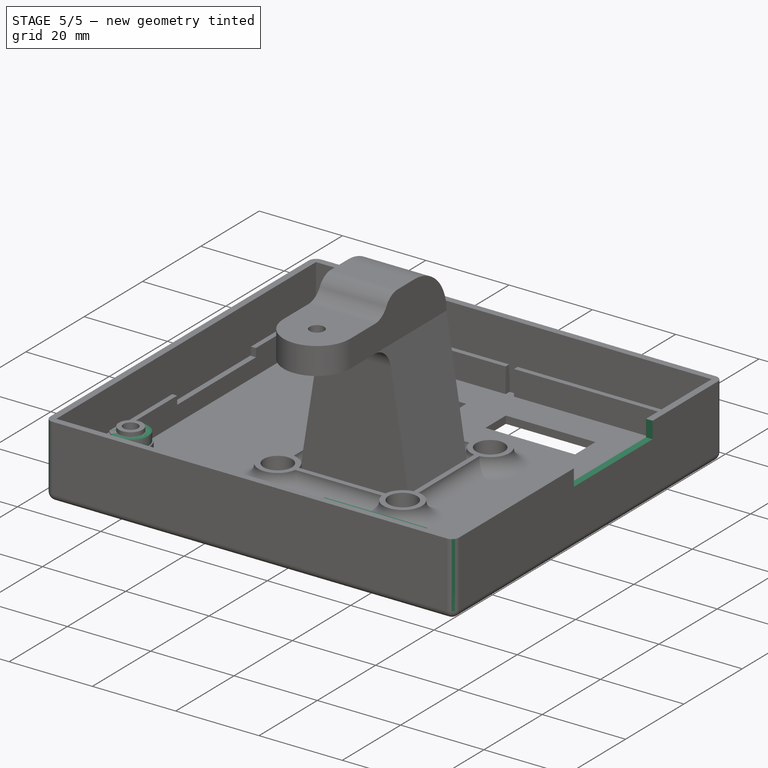
[diagram: stage 5 of 5 — iso view after this stage's code; geometry added in this stage tinted green]
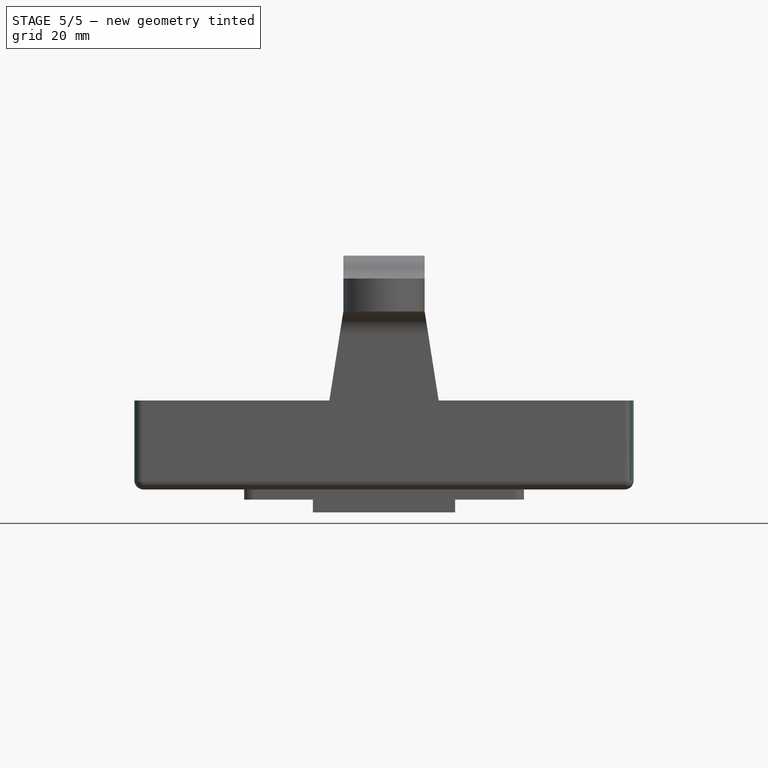
[diagram: stage 5 of 5 — front view after this stage's code; geometry added in this stage tinted green]
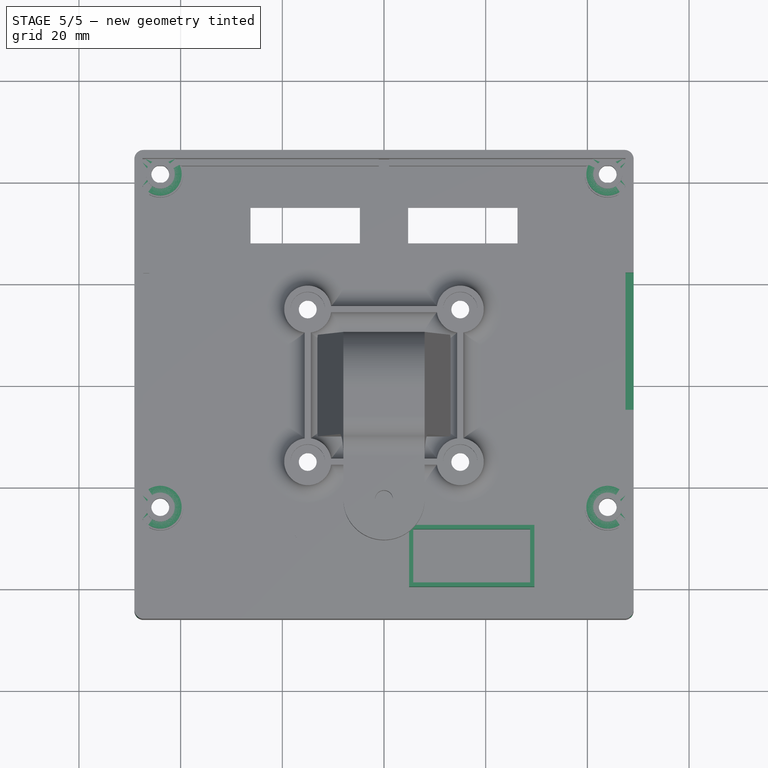
[diagram: stage 5 of 5 — top view after this stage's code; geometry added in this stage tinted green]
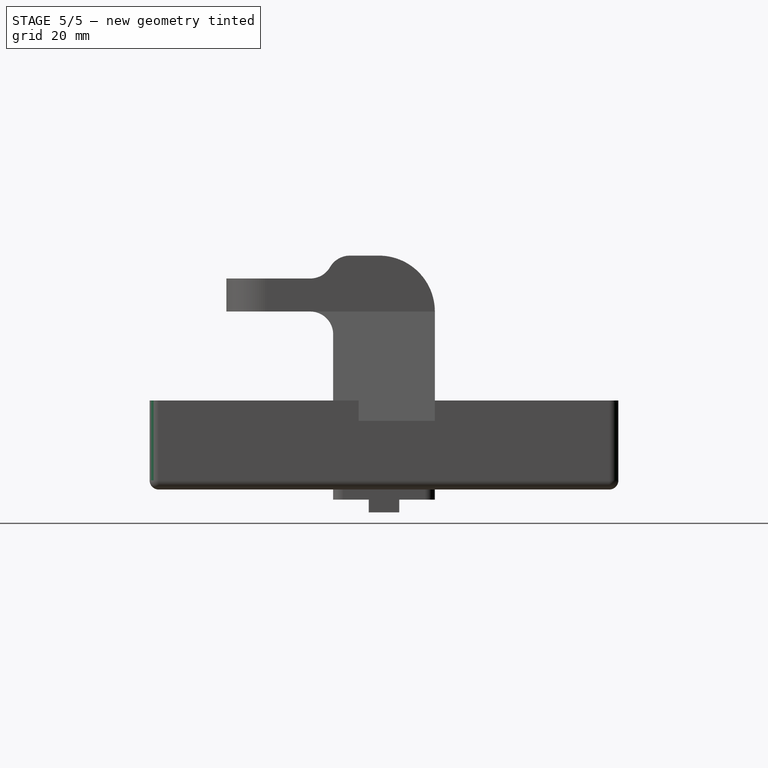
[diagram: stage 5 of 5 — right view after this stage's code; geometry added in this stage tinted green]
FEATURE [PartDesign::Pad] Pad010  label="Arm2020Base"
  Length = 1.8
  Length2 = 100
  Profile = -> Sketch014
  Reversed = true
  Type = 0
  expr: Length = Dimensions.PanelThickness
FEATURE [Sketcher::SketchObject] Sketch025  label="arm_2020_start_M"
  MapMode = 5
  Placement = pos=(0,0,5) rot=(0,0,1;0rad)
  sketch-geometry (4):
    g0: LineSegment StartX=-9 StartY=7.5 StartZ=0 EndX=9 EndY=7.5 EndZ=0
    g1: LineSegment StartX=9 StartY=7.5 StartZ=0 EndX=9 EndY=-7.5 EndZ=0
    g2: LineSegment StartX=9 StartY=-7.5 StartZ=0 EndX=-9 EndY=-7.5 EndZ=0
    g3: LineSegment StartX=-9 StartY=-7.5 StartZ=0 EndX=-9 EndY=7.5 EndZ=0
  constraints (13):
    c: Horizontal(g0)
    c: Horizontal(g2)
    c: Vertical(g1)
    c: Symmetric(g0,g2,g-1)
    c: Symmetric(g3,g1,g-2)
    c: DistanceX(g3,g1) = 18
    c: Coincident(g0,g1)
    c: Coincident(g0,g3)
    c: Coincident(g2,g3)
    c: Coincident(g1,g2)
    c: Equal(g0,g2)
    c: Equal(g3,g1)
    c: DistanceY(g3,g3) = 15  'Width'
FEATURE [PartDesign::AdditiveLoft] AdditiveLoft
  BaseFeature = -> Pad010
  Closed = false
  Profile = -> Sketch016
  Ruled = false
  Sections = -> [Sketch025,Sketch017]
FEATURE [PartDesign::Pad] Pad011  label="Arm2020Hinge"
  BaseFeature = -> AdditiveLoft
  Length = 6.5
  Length2 = 100
  Midplane = true
  Profile = -> Sketch018
  Refine = true
  Type = 0
  expr: Length = arm_2020_start_H.Constraints.Width
FEATURE [PartDesign::Pad] Pad012  label="Arm2020BaseGroove"
  BaseFeature = -> Pad011
  Length = 2.5
  Length2 = 100
  Profile = -> Sketch015
  Type = 0
FEATURE [PartDesign::Body] Body003  label="ArmBody"
  Group = -> [Sketch014,Sketch016,Sketch017,Sketch018,Sketch015,Pad010,AdditiveLoft,Pad011,Sketch025,Pad012]
  Origin = -> Origin004
  Tip = -> Pad012
FEATURE [App::Part] Part  label="Arm"
  Group = -> [Body003]
  License = CC BY 3.0
  LicenseURL = http://creativecommons.org/licenses/by/3.0/
  Origin = -> Origin002
FEATURE [Spreadsheet::Sheet] Spreadsheet001  label="Screws"
  cells = B2=M3Radius; C2(M3Radius)==1.75mm; B3=M3HeadRadius; C3(M3HeadRadius)==3mm; B4=M3HeadHeight; C4(M3HeadHeight)==3.3999999999999999mm; B5=M3NutRadius; C5(M3NutRadius)==3.3999999999999999mm; B6=M3NutHeight; C6(M3NutHeight)==2.6000000000000001mm; B7=M3NutDuctWidth; C7(M3NutDuctWidth)==6mm; B8=M4Radius; C8(M4Radius)==2.2000000000000002mm; B9=M4HeadRadius; C9(M4HeadRadius)==3.7000000000000002mm; B10=M4HeadHeight; C10(M4HeadHeight)==4mm; B11=M4NutRadius; C11(M4NutRadius)==4.2000000000000002mm; B12=M4NutHeight; C12(M4NutHeight)==3.2999999999999998mm; B13=M5Radius; C13(M5Radius)==2.6600000000000001mm; B14=M5HeadRadius; C14(M5HeadRadius)==4.5mm; B15=M5HeadHeight; C15(M5HeadHeight)==5mm; B16=M5NutRadius; C16(M5NutRadius)==4.75mm; B17=M5NutHeight; C17(M5NutHeight)==4mm
FEATURE [Sketcher::SketchObject] Sketch026  label="frontnuts2"
  MapMode = 5
  Placement = pos=(0,0,3.4) rot=(0,0,1;0rad)
  expr: Constraints[19] = Screws.M3Radius
  expr: Placement.Base.z = frontnuts1.Placement.Base.z + FrontNuts1.Length
  expr: Constraints[21] = Dimensions.HoleDistanceV
  expr: Constraints[20] = Dimensions.PCBHeight / 2 - Dimensions.HoleDistanceTop
  expr: Constraints[2] = Dimensions.HoleDistanceH
  sketch-geometry (10):
    g0: Circle CenterX=-44 CenterY=41.5 CenterZ=0 NormalX=0 NormalY=0 NormalZ=1 AngleXU=0 Radius=4.2
    g1: Circle CenterX=44 CenterY=41.5 CenterZ=0 NormalX=0 NormalY=0 NormalZ=1 AngleXU=0 Radius=4.2
    g2: Circle CenterX=44 CenterY=-24 CenterZ=0 NormalX=0 NormalY=0 NormalZ=1 AngleXU=0 Radius=4.2
    g3: Circle CenterX=-44 CenterY=-24 CenterZ=0 NormalX=0 NormalY=0 NormalZ=1 AngleXU=0 Radius=4.2
    g4: LineSegment [constr] StartX=-44 StartY=41.5 StartZ=0 EndX=44 EndY=41.5 EndZ=0
    g5: LineSegment [constr] StartX=-44 StartY=-24 StartZ=0 EndX=44 EndY=-24 EndZ=0
    g6: Circle CenterX=-44 CenterY=41.5 CenterZ=0 NormalX=0 NormalY=0 NormalZ=1 AngleXU=0 Radius=1.75
    g7: Circle CenterX=44 CenterY=41.5 CenterZ=0 NormalX=0 NormalY=0 NormalZ=1 AngleXU=0 Radius=1.75
    g8: Circle CenterX=44 CenterY=-24 CenterZ=0 NormalX=0 NormalY=0 NormalZ=1 AngleXU=0 Radius=1.75
    g9: Circle CenterX=-44 CenterY=-24 CenterZ=0 NormalX=0 NormalY=0 NormalZ=1 AngleXU=0 Radius=1.75
  constraints (22):
    c: Symmetric(g0,g1,g-2)
    c: Symmetric(g3,g2,g-2)
    c: DistanceX(g0,g1) = 88
    c: Coincident(g4,g0)
    c: Coincident(g4,g1)
    c: Coincident(g5,g3)
    c: Coincident(g5,g2)
    c: Equal(g4,g5)
    c: Equal(g0,g1)
    c: Equal(g1,g2)
    c: Equal(g2,g3)
    c: Radius(g0) = 4.2
    c: Coincident(g6,g0)
    c: Coincident(g7,g1)
    c: Coincident(g8,g2)
    c: Coincident(g9,g3)
    c: Equal(g6,g7)
    c: Equal(g7,g8)
    c: Equal(g8,g9)
    c: Radius(g6) = 1.75
    c: DistanceY(g-1,g0) = 41.5
    c: DistanceY(g3,g0) = 65.5
FEATURE [PartDesign::Pad] Pad013  label="FrontNuts2"
  BaseFeature = -> Pad002
  Length = 4.6
  Length2 = 100
  Profile = -> Sketch026
  Type = 0
  expr: Length = 8mm - (frontnuts1.Placement.Base.z + FrontNuts1.Length)
FEATURE [Sketcher::SketchObject] Sketch027  label="vmframe"
  AttachmentOffset = pos=(0,0,1.8) rot=(0,0,1;0rad)
  MapMode = 5
  Placement = pos=(0,0,1.8) rot=(0,0,1;0rad)
  Support = -> [XY_Plane]
  expr: Constraints[11] = frontpanel.Constraints.VMHOffset
  expr: Constraints[10] = Sketch.Constraints.VMVOffset
  expr: Constraints[9] = Dimensions.VMHeight
  expr: Constraints[8] = Dimensions.VMWidth
  expr: AttachmentOffset.Base.z = Dimensions.PanelThickness
  sketch-geometry (12):
    g0: LineSegment StartX=5.75 StartY=-28.3 StartZ=0 EndX=28.75 EndY=-28.3 EndZ=0
    g1: LineSegment StartX=28.75 StartY=-28.3 StartZ=0 EndX=28.75 EndY=-38.8 EndZ=0
    g2: LineSegment StartX=28.75 StartY=-38.8 StartZ=0 EndX=5.75 EndY=-38.8 EndZ=0
    g3: LineSegment StartX=5.75 StartY=-38.8 StartZ=0 EndX=5.75 EndY=-28.3 EndZ=0
    g4: LineSegment StartX=4.93 StartY=-27.48 StartZ=0 EndX=29.57 EndY=-27.48 EndZ=0
    g5: LineSegment StartX=29.57 StartY=-27.48 StartZ=0 EndX=29.57 EndY=-39.62 EndZ=0
    g6: LineSegment StartX=29.57 StartY=-39.62 StartZ=0 EndX=4.93 EndY=-39.62 EndZ=0
    g7: LineSegment StartX=4.93 StartY=-39.62 StartZ=0 EndX=4.93 EndY=-27.48 EndZ=0
    g8: LineSegment [constr] StartX=28.75 StartY=-38.8 StartZ=0 EndX=28.75 EndY=-39.62 EndZ=0
    g9: LineSegment [constr] StartX=28.75 StartY=-28.3 StartZ=0 EndX=29.57 EndY=-28.3 EndZ=0
    g10: LineSegment [constr] StartX=5.75 StartY=-28.3 StartZ=0 EndX=5.75 EndY=-27.48 EndZ=0
    g11: LineSegment [constr] StartX=5.75 StartY=-38.8 StartZ=0 EndX=4.93 EndY=-38.8 EndZ=0
  constraints (36):
    c: Coincident(g0,g1)
    c: Coincident(g1,g2)
    c: Coincident(g2,g3)
    c: Coincident(g3,g0)
    c: Horizontal(g0)
    c: Horizontal(g2)
    c: Vertical(g1)
    c: Vertical(g3)
    c: DistanceX(g2,g2) = 23
    c: DistanceY(g3,g3) = 10.5
    c: DistanceY(g0,g-1) = 28.3
    c: DistanceX(g-1,g0) = 5.75
    c: Coincident(g4,g5)
    c: Coincident(g5,g6)
    c: Coincident(g6,g7)
    c: Coincident(g7,g4)
    c: Horizontal(g4)
    c: Horizontal(g6)
    c: Vertical(g5)
    c: Vertical(g7)
    c: DistanceX(g1,g5) = 0.82
    c: Coincident(g8,g1)
    c: PointOnObject(g8,g6)
    c: Vertical(g8)
    c: Coincident(g9,g0)
    c: PointOnObject(g9,g5)
    c: Horizontal(g9)
    c: Coincident(g10,g0)
    c: PointOnObject(g10,g4)
    c: Vertical(g10)
    c: Coincident(g11,g2)
    c: PointOnObject(g11,g7)
    c: Horizontal(g11)
    c: Equal(g8,g9)
    c: Equal(g9,g10)
    c: Equal(g10,g11)
FEATURE [PartDesign::Pad] Pad014  label="VmFrame"
  BaseFeature = -> Pad013
  Length = 6.2
  Length2 = 100
  Profile = -> Sketch027
  Type = 0
  expr: Length = frontnuts2.Placement.Base.z + FrontNuts2.Length - FrontPanel.Length
FEATURE [PartDesign::Pocket] Pocket  label="SDHole"
  BaseFeature = -> Pad014
  Length = 1.6
  Length2 = 100
  Profile = -> Sketch003
  Refine = true
  Type = 0
  expr: Length = Dimensions.WallThickness
FEATURE [PartDesign::Fillet] Fillet
  Base = -> Pocket [Edge165,Edge21,Edge22,Edge163,Edge166,Edge20,Edge19,Edge164]
  BaseFeature = -> Pocket
  Radius = 1.799
  expr: Radius = Spreadsheet.PanelThickness - 0.001mm
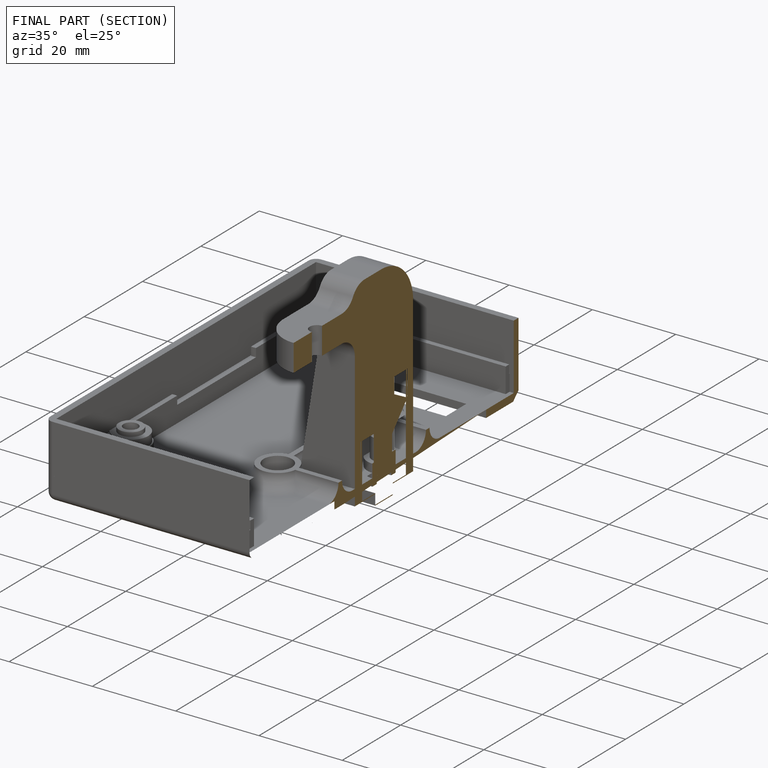
[diagram: finished part — half-section view (interior)]
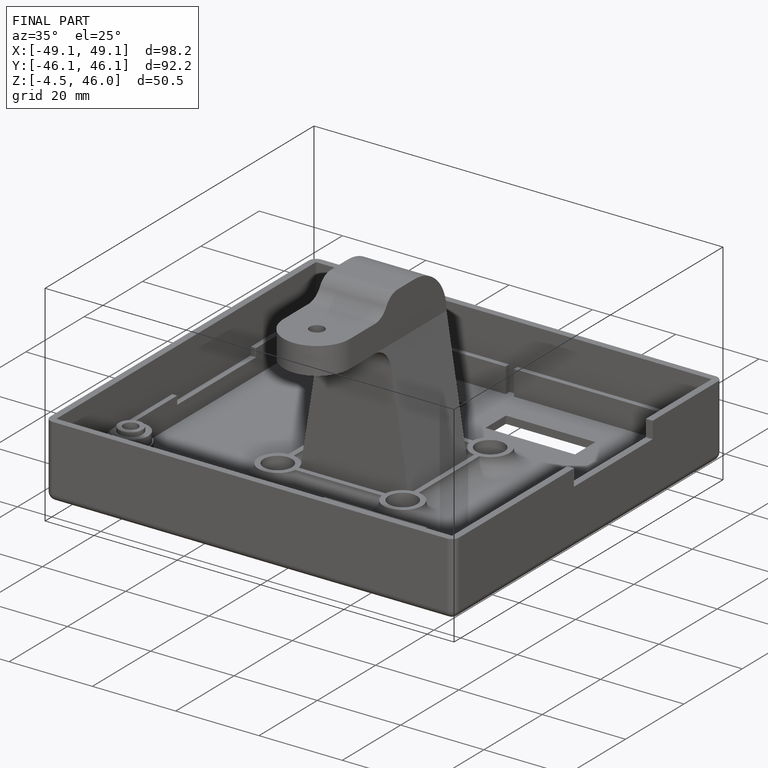
[diagram: finished part — iso view with bounding-box wireframe]
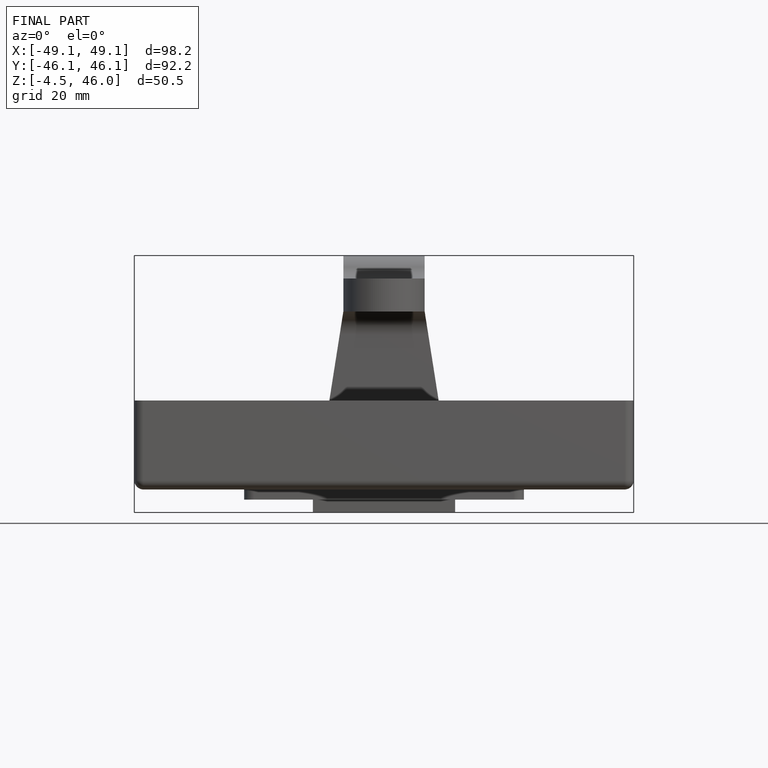
[diagram: finished part — front view with bounding-box wireframe]
